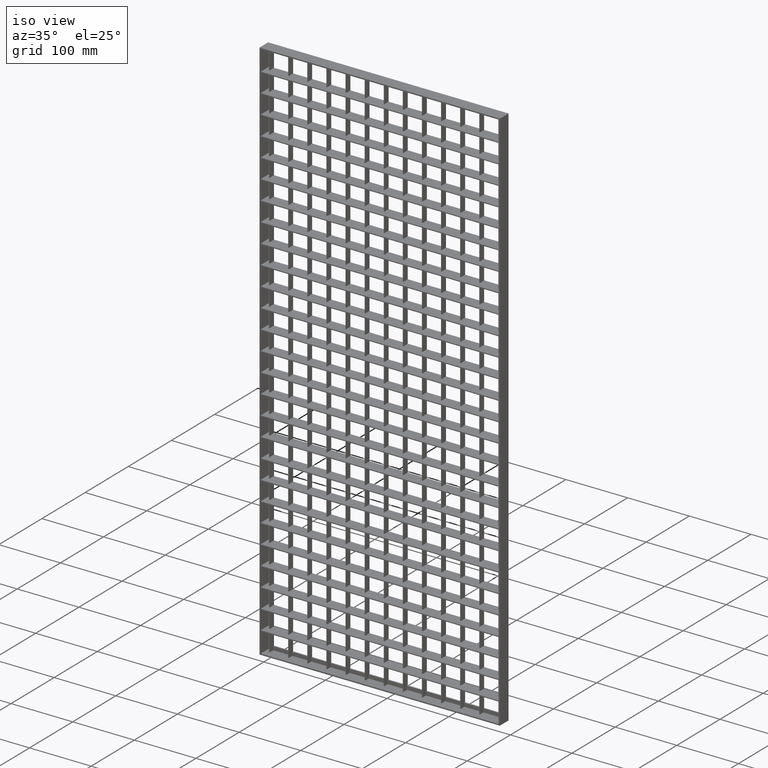
[diagram: clean part render]
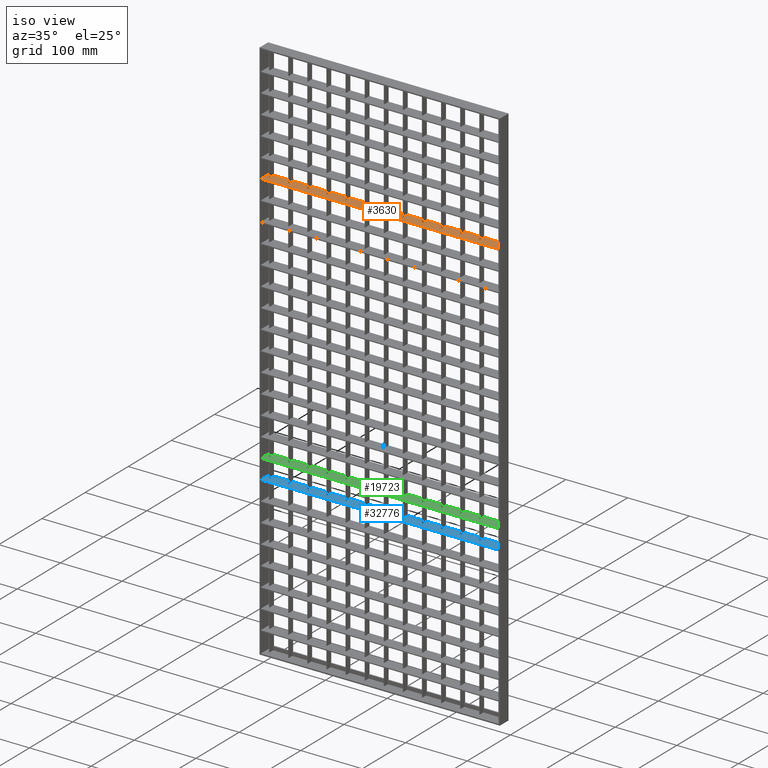
[diagram: same view with three faces highlighted in distinct colors, each labeled with its STEP entity id]
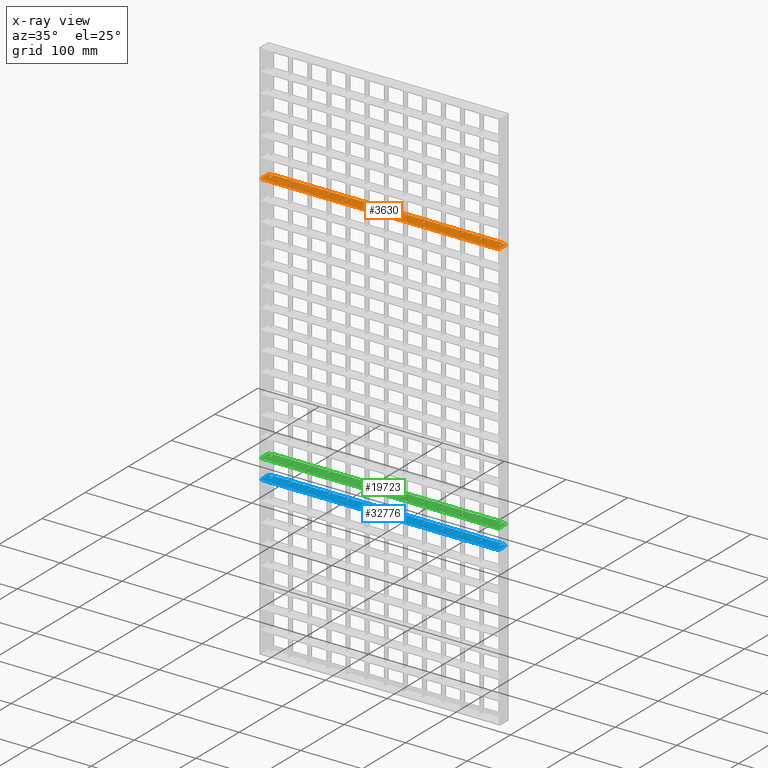
[diagram: x-ray of the same camera — body ghosted, the three highlighted faces saturated]
A machine part, iso view with three faces highlighted in distinct colors.
The next image is the same camera in x-ray (body ghosted, the three faces saturated) — at least one of them is partly hidden behind the body in this view.
Their STEP definitions:

[orange] entity #3630 — the highlighted planar face has unit normal (0, 0, 1).
#61 = ORIENTED_EDGE ( 'NONE', *, *, #44820, .T. ) ;
#150 = ORIENTED_EDGE ( 'NONE', *, *, #13722, .T. ) ;
#483 = VERTEX_POINT ( 'NONE', #38336 ) ;
#585 = CARTESIAN_POINT ( 'NONE',  ( 195.5000000000000600, 10.00000000000005300, -192.2500000000001400 ) ) ;
#863 = EDGE_CURVE ( 'NONE', #21381, #52668, #17147, .T. ) ;
#898 = ORIENTED_EDGE ( 'NONE', *, *, #33021, .F. ) ;
#1306 = EDGE_CURVE ( 'NONE', #5168, #33740, #14116, .T. ) ;
#1313 = CARTESIAN_POINT ( 'NONE',  ( 287.5000000000001100, -9.999999999999881000, -192.2500000000001400 ) ) ;
#1360 = EDGE_CURVE ( 'NONE', #14015, #25037, #33572, .T. ) ;
#1382 = EDGE_CURVE ( 'NONE', #22975, #24222, #14758, .T. ) ;
#1593 = LINE ( 'NONE', #25158, #46260 ) ;
#1608 = LINE ( 'NONE', #37558, #6260 ) ;
#1775 = CARTESIAN_POINT ( 'NONE',  ( 382.0000000000002300, 10.00000000000000400, -192.2500000000001400 ) ) ;
#1867 = ORIENTED_EDGE ( 'NONE', *, *, #34208, .F. ) ;
#2051 = LINE ( 'NONE', #37416, #54752 ) ;
#2238 = VERTEX_POINT ( 'NONE', #45778 ) ;
#2289 = CARTESIAN_POINT ( 'NONE',  ( 408.0561711201316900, 10.00000000000012100, -192.2500000000001400 ) ) ;
#2295 = ORIENTED_EDGE ( 'NONE', *, *, #40499, .T. ) ;
#2313 = CARTESIAN_POINT ( 'NONE',  ( 133.5000000000000000, -9.999999999999881000, -192.2500000000001400 ) ) ;
#2596 = VECTOR ( 'NONE', #53444, 1000.000000000000000 ) ;
#2722 = EDGE_CURVE ( 'NONE', #3088, #28177, #53402, .T. ) ;
#2839 = DIRECTION ( 'NONE',  ( -0.0000000000000000000, -1.000000000000000000, 0.0000000000000000000 ) ) ;
#2887 = VECTOR ( 'NONE', #52621, 1000.000000000000000 ) ;
#2982 = EDGE_CURVE ( 'NONE', #32814, #41437, #22632, .T. ) ;
#3073 = DIRECTION ( 'NONE',  ( -1.000000000000000000, 3.061616997868381200E-016, 0.0000000000000000000 ) ) ;
#3088 = VERTEX_POINT ( 'NONE', #21132 ) ;
#3104 = VERTEX_POINT ( 'NONE', #29173 ) ;
#3513 = DIRECTION ( 'NONE',  ( -0.0000000000000000000, 1.000000000000000000, 0.0000000000000000000 ) ) ;
#3527 = ORIENTED_EDGE ( 'NONE', *, *, #54027, .T. ) ;
#3540 = DIRECTION ( 'NONE',  ( -1.000000000000000000, -3.061616997868383100E-016, 0.0000000000000000000 ) ) ;
#3630 = ADVANCED_FACE ( 'NONE', ( #34644 ), #44379, .T. ) ;
#3893 = CARTESIAN_POINT ( 'NONE',  ( 225.5000000000001400, -9.999999999999881000, -192.2500000000001400 ) ) ;
#3936 = CARTESIAN_POINT ( 'NONE',  ( 101.4999999999999900, 3.288756224416848900E-015, -192.2500000000001400 ) ) ;
#3998 = EDGE_CURVE ( 'NONE', #50560, #14814, #8552, .T. ) ;
#4051 = VECTOR ( 'NONE', #40746, 1000.000000000000000 ) ;
#4193 = CARTESIAN_POINT ( 'NONE',  ( 408.0561711201316900, 1.058181320345852300E-013, -192.2500000000001400 ) ) ;
#4320 = VECTOR ( 'NONE', #43580, 1000.000000000000000 ) ;
#4396 = LINE ( 'NONE', #23170, #49175 ) ;
#4408 = VECTOR ( 'NONE', #43892, 1000.000000000000000 ) ;
#4560 = CARTESIAN_POINT ( 'NONE',  ( 194.5000000000000000, 4.006218688963889700E-015, -192.2500000000001400 ) ) ;
#4595 = CARTESIAN_POINT ( 'NONE',  ( 408.0561711201316900, 8.673617379884035500E-014, -192.2500000000001400 ) ) ;
#4659 = ORIENTED_EDGE ( 'NONE', *, *, #1306, .T. ) ;
#4822 = EDGE_LOOP ( 'NONE', ( #2295, #27605, #33427, #35723, #41591, #11537, #24408, #26407, #50194, #40820, #24240, #20034, #16644, #48398, #24352, #150, #12273, #35119, #3527, #32185, #45440, #9073, #13486, #8823, #26877, #14923, #44211, #16005, #4659, #8673, #51947, #7315, #27823, #41883, #33677, #27255, #40769, #898, #25419, #13377, #18519, #46485, #7204, #30045, #23944, #44781, #1867, #40818, #44635, #21170, #11506, #54767, #11487, #49882, #27303, #5840, #14092, #38158, #61, #32230 ) ) ;
#4889 = VERTEX_POINT ( 'NONE', #50417 ) ;
#5059 = DIRECTION ( 'NONE',  ( -1.000000000000000000, -3.061616997868383100E-016, 0.0000000000000000000 ) ) ;
#5168 = VERTEX_POINT ( 'NONE', #51419 ) ;
#5351 = CARTESIAN_POINT ( 'NONE',  ( 408.0561711201316900, 7.806255641895631900E-014, -192.2500000000001400 ) ) ;
#5489 = LINE ( 'NONE', #13001, #11443 ) ;
#5552 = EDGE_CURVE ( 'NONE', #24222, #45373, #19642, .T. ) ;
#5668 = LINE ( 'NONE', #28376, #25623 ) ;
#5718 = EDGE_CURVE ( 'NONE', #4889, #10374, #35713, .T. ) ;
#5840 = ORIENTED_EDGE ( 'NONE', *, *, #7506, .T. ) ;
#6083 = VECTOR ( 'NONE', #46408, 1000.000000000000000 ) ;
#6260 = VECTOR ( 'NONE', #33824, 1000.000000000000000 ) ;
#6469 = DIRECTION ( 'NONE',  ( 1.000000000000000000, 3.061616997868381200E-016, -0.0000000000000000000 ) ) ;
#6855 = DIRECTION ( 'NONE',  ( 0.0000000000000000000, -1.000000000000000000, 0.0000000000000000000 ) ) ;
#6981 = CARTESIAN_POINT ( 'NONE',  ( 8.500000000000007100, 2.571293759869832600E-015, -192.2500000000001400 ) ) ;
#7204 = ORIENTED_EDGE ( 'NONE', *, *, #5718, .F. ) ;
#7284 = VERTEX_POINT ( 'NONE', #44405 ) ;
#7315 = ORIENTED_EDGE ( 'NONE', *, *, #2722, .F. ) ;
#7317 = VECTOR ( 'NONE', #30308, 1000.000000000000000 ) ;
#7324 = VECTOR ( 'NONE', #44167, 1000.000000000000000 ) ;
#7491 = EDGE_CURVE ( 'NONE', #32814, #16883, #43433, .T. ) ;
#7506 = EDGE_CURVE ( 'NONE', #50200, #53461, #26057, .T. ) ;
#7748 = CARTESIAN_POINT ( 'NONE',  ( 388.0000000000001100, -10.00000000000000500, -192.2500000000001400 ) ) ;
#7799 = CARTESIAN_POINT ( 'NONE',  ( 318.5000000000000600, 2.741007806152566700E-015, -192.2500000000001400 ) ) ;
#7886 = VECTOR ( 'NONE', #9605, 1000.000000000000000 ) ;
#7945 = CARTESIAN_POINT ( 'NONE',  ( 164.5000000000000000, 1.734723475976807100E-015, -192.2500000000001400 ) ) ;
#8037 = EDGE_CURVE ( 'NONE', #49486, #11304, #48041, .T. ) ;
#8552 = LINE ( 'NONE', #53495, #39282 ) ;
#8673 = ORIENTED_EDGE ( 'NONE', *, *, #43203, .F. ) ;
#8717 = EDGE_CURVE ( 'NONE', #25988, #26623, #37984, .T. ) ;
#8734 = VECTOR ( 'NONE', #29049, 1000.000000000000000 ) ;
#8780 = LINE ( 'NONE', #48475, #52861 ) ;
#8823 = ORIENTED_EDGE ( 'NONE', *, *, #21421, .T. ) ;
#8869 = VERTEX_POINT ( 'NONE', #34161 ) ;
#9073 = ORIENTED_EDGE ( 'NONE', *, *, #3998, .T. ) ;
#9516 = VERTEX_POINT ( 'NONE', #52491 ) ;
#9605 = DIRECTION ( 'NONE',  ( 0.0000000000000000000, 1.000000000000000000, -0.0000000000000000000 ) ) ;
#9876 = EDGE_CURVE ( 'NONE', #43827, #19633, #32503, .T. ) ;
#10040 = VECTOR ( 'NONE', #52476, 1000.000000000000000 ) ;
#10144 = CARTESIAN_POINT ( 'NONE',  ( 381.5000000000000000, 2.434846106365728500E-015, -192.2500000000001400 ) ) ;
#10176 = LINE ( 'NONE', #45690, #11515 ) ;
#10374 = VERTEX_POINT ( 'NONE', #11328 ) ;
#10667 = DIRECTION ( 'NONE',  ( -1.000000000000000000, 3.061616997868381200E-016, 0.0000000000000000000 ) ) ;
#10884 = VECTOR ( 'NONE', #46147, 1000.000000000000000 ) ;
#11018 = VERTEX_POINT ( 'NONE', #31182 ) ;
#11265 = DIRECTION ( 'NONE',  ( 0.0000000000000000000, -1.000000000000000000, 0.0000000000000000000 ) ) ;
#11275 = VECTOR ( 'NONE', #28833, 1000.000000000000000 ) ;
#11304 = VERTEX_POINT ( 'NONE', #15445 ) ;
#11328 = CARTESIAN_POINT ( 'NONE',  ( 71.50000000000001400, 1.734723475976807100E-015, -192.2500000000001400 ) ) ;
#11335 = DIRECTION ( 'NONE',  ( -1.000000000000000000, 0.0000000000000000000, 0.0000000000000000000 ) ) ;
#11367 = LINE ( 'NONE', #34938, #10040 ) ;
#11390 = EDGE_CURVE ( 'NONE', #52072, #53461, #1593, .T. ) ;
#11443 = VECTOR ( 'NONE', #21997, 1000.000000000000000 ) ;
#11487 = ORIENTED_EDGE ( 'NONE', *, *, #1382, .T. ) ;
#11506 = ORIENTED_EDGE ( 'NONE', *, *, #37739, .F. ) ;
#11515 = VECTOR ( 'NONE', #17066, 1000.000000000000000 ) ;
#11537 = ORIENTED_EDGE ( 'NONE', *, *, #18401, .T. ) ;
#11630 = CARTESIAN_POINT ( 'NONE',  ( 8.500000000000007100, -9.999999999999881000, -192.2500000000001400 ) ) ;
#11985 = CARTESIAN_POINT ( 'NONE',  ( 101.5000000000000300, -9.999999999999881000, -192.2500000000001400 ) ) ;
#12252 = LINE ( 'NONE', #24141, #18224 ) ;
#12273 = ORIENTED_EDGE ( 'NONE', *, *, #14592, .T. ) ;
#12335 = DIRECTION ( 'NONE',  ( 0.0000000000000000000, -1.000000000000000000, 0.0000000000000000000 ) ) ;
#12512 = CARTESIAN_POINT ( 'NONE',  ( 256.5000000000000600, -9.999999999999881000, -192.2500000000001400 ) ) ;
#12693 = VECTOR ( 'NONE', #11265, 1000.000000000000000 ) ;
#12708 = DIRECTION ( 'NONE',  ( 1.000000000000000000, 3.061616997868381200E-016, -0.0000000000000000000 ) ) ;
#13001 = CARTESIAN_POINT ( 'NONE',  ( 257.5000000000000600, -9.999999999999881000, -192.2500000000001400 ) ) ;
#13115 = LINE ( 'NONE', #54424, #45914 ) ;
#13345 = LINE ( 'NONE', #24036, #20708 ) ;
#13377 = ORIENTED_EDGE ( 'NONE', *, *, #22087, .F. ) ;
#13386 = EDGE_CURVE ( 'NONE', #38570, #4889, #51446, .T. ) ;
#13427 = CARTESIAN_POINT ( 'NONE',  ( 380.5000000000000000, -9.999999999999881000, -192.2500000000001400 ) ) ;
#13486 = ORIENTED_EDGE ( 'NONE', *, *, #49054, .T. ) ;
#13575 = CARTESIAN_POINT ( 'NONE',  ( 256.5000000000001100, 10.00000000000007300, -192.2500000000001400 ) ) ;
#13713 = CARTESIAN_POINT ( 'NONE',  ( 40.49999999999997900, -9.999999999999881000, -192.2500000000001400 ) ) ;
#13722 = EDGE_CURVE ( 'NONE', #11304, #28639, #15969, .T. ) ;
#13759 = VERTEX_POINT ( 'NONE', #30937 ) ;
#14015 = VERTEX_POINT ( 'NONE', #7799 ) ;
#14092 = ORIENTED_EDGE ( 'NONE', *, *, #11390, .F. ) ;
#14100 = CARTESIAN_POINT ( 'NONE',  ( 408.0561711201316900, -9.999999999999881000, -192.2500000000001400 ) ) ;
#14114 = CARTESIAN_POINT ( 'NONE',  ( 318.5000000000001100, -9.999999999999881000, -192.2500000000001400 ) ) ;
#14116 = LINE ( 'NONE', #34713, #28888 ) ;
#14208 = EDGE_CURVE ( 'NONE', #47059, #42042, #46002, .T. ) ;
#14228 = EDGE_CURVE ( 'NONE', #28177, #31664, #35989, .T. ) ;
#14399 = DIRECTION ( 'NONE',  ( -1.000000000000000000, 0.0000000000000000000, 0.0000000000000000000 ) ) ;
#14592 = EDGE_CURVE ( 'NONE', #28639, #9516, #33950, .T. ) ;
#14758 = LINE ( 'NONE', #22941, #2887 ) ;
#14814 = VERTEX_POINT ( 'NONE', #38854 ) ;
#14834 = EDGE_CURVE ( 'NONE', #27147, #19214, #41244, .T. ) ;
#14923 = ORIENTED_EDGE ( 'NONE', *, *, #863, .F. ) ;
#14942 = CARTESIAN_POINT ( 'NONE',  ( 349.5000000000001100, -9.999999999999881000, -192.2500000000001400 ) ) ;
#15065 = VECTOR ( 'NONE', #33540, 1000.000000000000000 ) ;
#15445 = CARTESIAN_POINT ( 'NONE',  ( 287.5000000000000600, 2.741007806152566700E-015, -192.2500000000001400 ) ) ;
#15503 = CARTESIAN_POINT ( 'NONE',  ( 408.0561711201316900, 10.00000000000012100, -192.2500000000001400 ) ) ;
#15594 = CARTESIAN_POINT ( 'NONE',  ( 39.49999999999997900, -9.999999999999881000, -192.2500000000001400 ) ) ;
#15613 = CARTESIAN_POINT ( 'NONE',  ( 349.5000000000001700, 10.00000000000010300, -192.2500000000001400 ) ) ;
#15638 = DIRECTION ( 'NONE',  ( -1.000000000000000000, 3.061616997868381200E-016, 0.0000000000000000000 ) ) ;
#15888 = VECTOR ( 'NONE', #43724, 1000.000000000000000 ) ;
#15969 = LINE ( 'NONE', #1313, #46728 ) ;
#15975 = LINE ( 'NONE', #29861, #27994 ) ;
#16005 = ORIENTED_EDGE ( 'NONE', *, *, #40330, .F. ) ;
#16237 = CARTESIAN_POINT ( 'NONE',  ( 9.500000000000119000, 9.999999999999998200, -192.2500000000001400 ) ) ;
#16378 = CARTESIAN_POINT ( 'NONE',  ( 408.0561711201316900, -1.387778780781445700E-014, -192.2500000000001400 ) ) ;
#16585 = EDGE_CURVE ( 'NONE', #28942, #52072, #24941, .T. ) ;
#16644 = ORIENTED_EDGE ( 'NONE', *, *, #26569, .T. ) ;
#16686 = CARTESIAN_POINT ( 'NONE',  ( 132.5000000000000000, 2.371428061948003200E-015, -192.2500000000001400 ) ) ;
#16883 = VERTEX_POINT ( 'NONE', #51050 ) ;
#16935 = CARTESIAN_POINT ( 'NONE',  ( 133.5000000000000000, 1.734723475976807100E-015, -192.2500000000001400 ) ) ;
#16960 = DIRECTION ( 'NONE',  ( -1.000000000000000000, -3.061616997868383100E-016, 0.0000000000000000000 ) ) ;
#17066 = DIRECTION ( 'NONE',  ( -1.000000000000000000, -3.061616997868383100E-016, 0.0000000000000000000 ) ) ;
#17147 = LINE ( 'NONE', #36078, #2596 ) ;
#17153 = VERTEX_POINT ( 'NONE', #1775 ) ;
#17248 = CARTESIAN_POINT ( 'NONE',  ( 8.500000000000007100, 10.00000000000000400, -192.2500000000001400 ) ) ;
#17345 = LINE ( 'NONE', #33736, #6083 ) ;
#17491 = EDGE_CURVE ( 'NONE', #28785, #31448, #1608, .T. ) ;
#17598 = VECTOR ( 'NONE', #12708, 1000.000000000000000 ) ;
#17655 = DIRECTION ( 'NONE',  ( -1.000000000000000000, 3.061616997868381200E-016, 0.0000000000000000000 ) ) ;
#17815 = VERTEX_POINT ( 'NONE', #23695 ) ;
#18016 = CARTESIAN_POINT ( 'NONE',  ( 408.0561711201316900, -5.204170427930421300E-014, -192.2500000000001400 ) ) ;
#18224 = VECTOR ( 'NONE', #6469, 1000.000000000000000 ) ;
#18282 = VECTOR ( 'NONE', #22178, 1000.000000000000000 ) ;
#18387 = DIRECTION ( 'NONE',  ( -0.0000000000000000000, 1.000000000000000000, 0.0000000000000000000 ) ) ;
#18401 = EDGE_CURVE ( 'NONE', #42042, #43827, #8780, .T. ) ;
#18519 = ORIENTED_EDGE ( 'NONE', *, *, #19292, .T. ) ;
#18595 = CARTESIAN_POINT ( 'NONE',  ( 102.5000000000000300, 1.734723475976807100E-015, -192.2500000000001400 ) ) ;
#19155 = LINE ( 'NONE', #43008, #7886 ) ;
#19214 = VERTEX_POINT ( 'NONE', #45585 ) ;
#19292 = EDGE_CURVE ( 'NONE', #13759, #45479, #15975, .T. ) ;
#19373 = LINE ( 'NONE', #50804, #44108 ) ;
#19445 = VERTEX_POINT ( 'NONE', #39583 ) ;
#19633 = VERTEX_POINT ( 'NONE', #48455 ) ;
#19642 = LINE ( 'NONE', #32370, #23701 ) ;
#19983 = CARTESIAN_POINT ( 'NONE',  ( 380.5000000000000600, 10.00000000000011200, -192.2500000000001400 ) ) ;
#20034 = ORIENTED_EDGE ( 'NONE', *, *, #1360, .T. ) ;
#20199 = DIRECTION ( 'NONE',  ( 1.000000000000000000, 3.061616997868381200E-016, -0.0000000000000000000 ) ) ;
#20708 = VECTOR ( 'NONE', #11335, 1000.000000000000000 ) ;
#21010 = LINE ( 'NONE', #11630, #23737 ) ;
#21089 = VECTOR ( 'NONE', #3073, 1000.000000000000000 ) ;
#21132 = CARTESIAN_POINT ( 'NONE',  ( 163.5000000000000000, 10.00000000000000400, -192.2500000000001400 ) ) ;
#21170 = ORIENTED_EDGE ( 'NONE', *, *, #39144, .F. ) ;
#21381 = VERTEX_POINT ( 'NONE', #28683 ) ;
#21421 = EDGE_CURVE ( 'NONE', #19445, #483, #34491, .T. ) ;
#21562 = DIRECTION ( 'NONE',  ( 1.000000000000000000, 3.061616997868381200E-016, -0.0000000000000000000 ) ) ;
#21596 = VECTOR ( 'NONE', #23820, 1000.000000000000000 ) ;
#21991 = EDGE_CURVE ( 'NONE', #22975, #50671, #21010, .T. ) ;
#21997 = DIRECTION ( 'NONE',  ( 0.0000000000000000000, -1.000000000000000000, 0.0000000000000000000 ) ) ;
#22021 = CARTESIAN_POINT ( 'NONE',  ( 381.5000000000000000, 10.00000000000000400, -192.2500000000001400 ) ) ;
#22087 = EDGE_CURVE ( 'NONE', #13759, #45833, #43767, .T. ) ;
#22178 = DIRECTION ( 'NONE',  ( 0.0000000000000000000, -1.000000000000000000, 0.0000000000000000000 ) ) ;
#22321 = CARTESIAN_POINT ( 'NONE',  ( 163.5000000000000000, -9.999999999999881000, -192.2500000000001400 ) ) ;
#22632 = LINE ( 'NONE', #54653, #11275 ) ;
#22647 = VECTOR ( 'NONE', #26068, 1000.000000000000000 ) ;
#22669 = LINE ( 'NONE', #33928, #54815 ) ;
#22941 = CARTESIAN_POINT ( 'NONE',  ( 408.0561711201316900, 10.00000000000012100, -192.2500000000001400 ) ) ;
#22969 = CARTESIAN_POINT ( 'NONE',  ( 71.50000000000017100, 10.00000000000001800, -192.2500000000001400 ) ) ;
#22975 = VERTEX_POINT ( 'NONE', #17248 ) ;
#23170 = CARTESIAN_POINT ( 'NONE',  ( 408.0561711201316900, -5.204170427930421300E-015, -192.2500000000001400 ) ) ;
#23450 = VECTOR ( 'NONE', #21562, 1000.000000000000000 ) ;
#23659 = EDGE_CURVE ( 'NONE', #38426, #50560, #38641, .T. ) ;
#23695 = CARTESIAN_POINT ( 'NONE',  ( 257.5000000000000600, 2.434846106365728500E-015, -192.2500000000001400 ) ) ;
#23701 = VECTOR ( 'NONE', #41134, 1000.000000000000000 ) ;
#23731 = LINE ( 'NONE', #13427, #4408 ) ;
#23737 = VECTOR ( 'NONE', #40961, 1000.000000000000000 ) ;
#23820 = DIRECTION ( 'NONE',  ( 0.0000000000000000000, -1.000000000000000000, 0.0000000000000000000 ) ) ;
#23944 = ORIENTED_EDGE ( 'NONE', *, *, #40437, .T. ) ;
#24036 = CARTESIAN_POINT ( 'NONE',  ( 2.000000000000003600, 8.000000000000001800, -192.2500000000001400 ) ) ;
#24141 = CARTESIAN_POINT ( 'NONE',  ( 408.0561711201316900, 6.938893903907228400E-014, -192.2500000000001400 ) ) ;
#24222 = VERTEX_POINT ( 'NONE', #47506 ) ;
#24240 = ORIENTED_EDGE ( 'NONE', *, *, #35764, .T. ) ;
#24352 = ORIENTED_EDGE ( 'NONE', *, *, #8037, .T. ) ;
#24408 = ORIENTED_EDGE ( 'NONE', *, *, #9876, .T. ) ;
#24630 = LINE ( 'NONE', #46946, #45381 ) ;
#24881 = EDGE_CURVE ( 'NONE', #25410, #47059, #23731, .T. ) ;
#24911 = CARTESIAN_POINT ( 'NONE',  ( 71.50000000000001400, -9.999999999999881000, -192.2500000000001400 ) ) ;
#24941 = LINE ( 'NONE', #36157, #21596 ) ;
#25037 = VERTEX_POINT ( 'NONE', #52676 ) ;
#25073 = LINE ( 'NONE', #55222, #41122 ) ;
#25158 = CARTESIAN_POINT ( 'NONE',  ( 408.0561711201316900, -9.999999999999881000, -192.2500000000001400 ) ) ;
#25393 = DIRECTION ( 'NONE',  ( 0.0000000000000000000, -1.000000000000000000, 0.0000000000000000000 ) ) ;
#25410 = VERTEX_POINT ( 'NONE', #30002 ) ;
#25419 = ORIENTED_EDGE ( 'NONE', *, *, #28239, .F. ) ;
#25623 = VECTOR ( 'NONE', #15638, 1000.000000000000000 ) ;
#25912 = CARTESIAN_POINT ( 'NONE',  ( 164.5000000000000600, 10.00000000000004600, -192.2500000000001400 ) ) ;
#25988 = VERTEX_POINT ( 'NONE', #16935 ) ;
#25999 = LINE ( 'NONE', #18016, #47311 ) ;
#26057 = LINE ( 'NONE', #45337, #36099 ) ;
#26068 = DIRECTION ( 'NONE',  ( -0.0000000000000000000, 1.000000000000000000, 0.0000000000000000000 ) ) ;
#26139 = CARTESIAN_POINT ( 'NONE',  ( 319.5000000000001100, -9.999999999999881000, -192.2500000000001400 ) ) ;
#26407 = ORIENTED_EDGE ( 'NONE', *, *, #41295, .T. ) ;
#26569 = EDGE_CURVE ( 'NONE', #25037, #8869, #10176, .T. ) ;
#26623 = VERTEX_POINT ( 'NONE', #47138 ) ;
#26851 = DIRECTION ( 'NONE',  ( -0.0000000000000000000, 1.000000000000000000, 0.0000000000000000000 ) ) ;
#26877 = ORIENTED_EDGE ( 'NONE', *, *, #48432, .T. ) ;
#27018 = DIRECTION ( 'NONE',  ( 0.0000000000000000000, 0.0000000000000000000, 1.000000000000000000 ) ) ;
#27083 = VECTOR ( 'NONE', #3540, 1000.000000000000000 ) ;
#27147 = VERTEX_POINT ( 'NONE', #37912 ) ;
#27206 = VERTEX_POINT ( 'NONE', #43490 ) ;
#27255 = ORIENTED_EDGE ( 'NONE', *, *, #51061, .F. ) ;
#27303 = ORIENTED_EDGE ( 'NONE', *, *, #53048, .T. ) ;
#27418 = DIRECTION ( 'NONE',  ( 0.0000000000000000000, -1.000000000000000000, 0.0000000000000000000 ) ) ;
#27552 = CARTESIAN_POINT ( 'NONE',  ( 9.500000000000008900, -9.999999999999881000, -192.2500000000001400 ) ) ;
#27605 = ORIENTED_EDGE ( 'NONE', *, *, #17491, .T. ) ;
#27639 = LINE ( 'NONE', #39656, #35698 ) ;
#27823 = ORIENTED_EDGE ( 'NONE', *, *, #35674, .T. ) ;
#27994 = VECTOR ( 'NONE', #34379, 1000.000000000000000 ) ;
#28177 = VERTEX_POINT ( 'NONE', #54076 ) ;
#28239 = EDGE_CURVE ( 'NONE', #45833, #32603, #2051, .T. ) ;
#28259 = VERTEX_POINT ( 'NONE', #36686 ) ;
#28376 = CARTESIAN_POINT ( 'NONE',  ( 408.0561711201316900, -2.428612866367529900E-014, -192.2500000000001400 ) ) ;
#28565 = EDGE_CURVE ( 'NONE', #29098, #27147, #22669, .T. ) ;
#28639 = VERTEX_POINT ( 'NONE', #29669 ) ;
#28683 = CARTESIAN_POINT ( 'NONE',  ( 195.5000000000000000, 1.734723475976807100E-015, -192.2500000000001400 ) ) ;
#28785 = VERTEX_POINT ( 'NONE', #22021 ) ;
#28833 = DIRECTION ( 'NONE',  ( -1.000000000000000000, -3.061616997868383100E-016, 0.0000000000000000000 ) ) ;
#28888 = VECTOR ( 'NONE', #5059, 1000.000000000000000 ) ;
#28942 = VERTEX_POINT ( 'NONE', #48550 ) ;
#29049 = DIRECTION ( 'NONE',  ( 0.0000000000000000000, -1.000000000000000000, 0.0000000000000000000 ) ) ;
#29098 = VERTEX_POINT ( 'NONE', #15613 ) ;
#29173 = CARTESIAN_POINT ( 'NONE',  ( 382.0000000000001100, 8.000000000000001800, -192.2500000000001400 ) ) ;
#29564 = DIRECTION ( 'NONE',  ( -1.000000000000000000, -3.061616997868383100E-016, 0.0000000000000000000 ) ) ;
#29669 = CARTESIAN_POINT ( 'NONE',  ( 287.5000000000001100, 10.00000000000008300, -192.2500000000001400 ) ) ;
#29861 = CARTESIAN_POINT ( 'NONE',  ( 408.0561711201316900, 10.00000000000012100, -192.2500000000001400 ) ) ;
#30002 = CARTESIAN_POINT ( 'NONE',  ( 380.5000000000000000, 2.741007806152566700E-015, -192.2500000000001400 ) ) ;
#30045 = ORIENTED_EDGE ( 'NONE', *, *, #13386, .F. ) ;
#30156 = VECTOR ( 'NONE', #26851, 1000.000000000000000 ) ;
#30308 = DIRECTION ( 'NONE',  ( 1.000000000000000000, 3.061616997868381200E-016, -0.0000000000000000000 ) ) ;
#30937 = CARTESIAN_POINT ( 'NONE',  ( 101.5000000000000000, 10.00000000000000400, -192.2500000000001400 ) ) ;
#31136 = CARTESIAN_POINT ( 'NONE',  ( 132.5000000000000000, -9.999999999999881000, -192.2500000000001400 ) ) ;
#31182 = CARTESIAN_POINT ( 'NONE',  ( 9.500000000000008900, 1.734723475976807100E-015, -192.2500000000001400 ) ) ;
#31448 = VERTEX_POINT ( 'NONE', #10144 ) ;
#31664 = VERTEX_POINT ( 'NONE', #7945 ) ;
#31748 = DIRECTION ( 'NONE',  ( -0.0000000000000000000, 1.000000000000000000, 0.0000000000000000000 ) ) ;
#31860 = VERTEX_POINT ( 'NONE', #4560 ) ;
#32185 = ORIENTED_EDGE ( 'NONE', *, *, #37091, .T. ) ;
#32230 = ORIENTED_EDGE ( 'NONE', *, *, #49884, .T. ) ;
#32370 = CARTESIAN_POINT ( 'NONE',  ( 7.999999999999996400, 8.000000000000001800, -192.2500000000001400 ) ) ;
#32503 = LINE ( 'NONE', #16378, #21089 ) ;
#32508 = EDGE_CURVE ( 'NONE', #9516, #17815, #5489, .T. ) ;
#32603 = VERTEX_POINT ( 'NONE', #18595 ) ;
#32677 = LINE ( 'NONE', #27552, #7324 ) ;
#32814 = VERTEX_POINT ( 'NONE', #53002 ) ;
#33021 = EDGE_CURVE ( 'NONE', #32603, #28259, #17345, .T. ) ;
#33023 = VERTEX_POINT ( 'NONE', #16686 ) ;
#33427 = ORIENTED_EDGE ( 'NONE', *, *, #50503, .T. ) ;
#33540 = DIRECTION ( 'NONE',  ( -0.0000000000000000000, 1.000000000000000000, 0.0000000000000000000 ) ) ;
#33572 = LINE ( 'NONE', #14114, #30156 ) ;
#33677 = ORIENTED_EDGE ( 'NONE', *, *, #44722, .F. ) ;
#33736 = CARTESIAN_POINT ( 'NONE',  ( 102.5000000000000300, -9.999999999999881000, -192.2500000000001400 ) ) ;
#33740 = VERTEX_POINT ( 'NONE', #25912 ) ;
#33824 = DIRECTION ( 'NONE',  ( 0.0000000000000000000, -1.000000000000000000, 0.0000000000000000000 ) ) ;
#33928 = CARTESIAN_POINT ( 'NONE',  ( 408.0561711201316900, 10.00000000000012100, -192.2500000000001400 ) ) ;
#33950 = LINE ( 'NONE', #15503, #47263 ) ;
#34161 = CARTESIAN_POINT ( 'NONE',  ( 288.5000000000000600, 10.00000000000000400, -192.2500000000001400 ) ) ;
#34168 = LINE ( 'NONE', #55426, #23450 ) ;
#34208 = EDGE_CURVE ( 'NONE', #16883, #46360, #24630, .T. ) ;
#34215 = CARTESIAN_POINT ( 'NONE',  ( 40.49999999999997900, 1.734723475976807100E-015, -192.2500000000001400 ) ) ;
#34379 = DIRECTION ( 'NONE',  ( -1.000000000000000000, -3.061616997868383100E-016, 0.0000000000000000000 ) ) ;
#34491 = LINE ( 'NONE', #3893, #15065 ) ;
#34587 = CARTESIAN_POINT ( 'NONE',  ( 408.0561711201316900, 10.00000000000012100, -192.2500000000001400 ) ) ;
#34644 = FACE_OUTER_BOUND ( 'NONE', #4822, .T. ) ;
#34713 = CARTESIAN_POINT ( 'NONE',  ( 408.0561711201316900, 10.00000000000012100, -192.2500000000001400 ) ) ;
#34938 = CARTESIAN_POINT ( 'NONE',  ( 408.0561711201316900, -4.336808689942017700E-014, -192.2500000000001400 ) ) ;
#35029 = LINE ( 'NONE', #48825, #54475 ) ;
#35114 = EDGE_CURVE ( 'NONE', #2238, #28259, #41146, .T. ) ;
#35119 = ORIENTED_EDGE ( 'NONE', *, *, #32508, .T. ) ;
#35191 = DIRECTION ( 'NONE',  ( -1.000000000000000000, -3.061616997868383100E-016, 0.0000000000000000000 ) ) ;
#35657 = CARTESIAN_POINT ( 'NONE',  ( 194.5000000000000000, -9.999999999999881000, -192.2500000000001400 ) ) ;
#35674 = EDGE_CURVE ( 'NONE', #3088, #26623, #35029, .T. ) ;
#35698 = VECTOR ( 'NONE', #14399, 1000.000000000000000 ) ;
#35713 = LINE ( 'NONE', #4193, #17598 ) ;
#35723 = ORIENTED_EDGE ( 'NONE', *, *, #24881, .T. ) ;
#35764 = EDGE_CURVE ( 'NONE', #19214, #14015, #5668, .T. ) ;
#35989 = LINE ( 'NONE', #5351, #7317 ) ;
#36078 = CARTESIAN_POINT ( 'NONE',  ( 195.5000000000000000, -9.999999999999881000, -192.2500000000001400 ) ) ;
#36099 = VECTOR ( 'NONE', #2839, 1000.000000000000000 ) ;
#36157 = CARTESIAN_POINT ( 'NONE',  ( 388.0000000000001100, -9.999999999999881000, -192.2500000000001400 ) ) ;
#36305 = CARTESIAN_POINT ( 'NONE',  ( 2.000000000000112800, -10.00000000000000500, -192.2500000000001400 ) ) ;
#36686 = CARTESIAN_POINT ( 'NONE',  ( 102.5000000000001400, 10.00000000000002700, -192.2500000000001400 ) ) ;
#37091 = EDGE_CURVE ( 'NONE', #27206, #38426, #40304, .T. ) ;
#37328 = VECTOR ( 'NONE', #29564, 1000.000000000000000 ) ;
#37387 = DIRECTION ( 'NONE',  ( -0.0000000000000000000, 1.000000000000000000, 0.0000000000000000000 ) ) ;
#37416 = CARTESIAN_POINT ( 'NONE',  ( 408.0561711201316900, 9.714451465470119700E-014, -192.2500000000001400 ) ) ;
#37438 = VECTOR ( 'NONE', #53581, 1000.000000000000000 ) ;
#37558 = CARTESIAN_POINT ( 'NONE',  ( 381.5000000000000000, -9.999999999999881000, -192.2500000000001400 ) ) ;
#37739 = EDGE_CURVE ( 'NONE', #50671, #11018, #34168, .T. ) ;
#37829 = DIRECTION ( 'NONE',  ( 0.0000000000000000000, -1.000000000000000000, 0.0000000000000000000 ) ) ;
#37912 = CARTESIAN_POINT ( 'NONE',  ( 319.5000000000000600, 10.00000000000000400, -192.2500000000001400 ) ) ;
#37984 = LINE ( 'NONE', #2313, #46015 ) ;
#38007 = CARTESIAN_POINT ( 'NONE',  ( 408.0561711201316900, 10.00000000000012100, -192.2500000000001400 ) ) ;
#38158 = ORIENTED_EDGE ( 'NONE', *, *, #16585, .F. ) ;
#38328 = CARTESIAN_POINT ( 'NONE',  ( 2.000000000000003600, 8.000000000000001800, -192.2500000000001400 ) ) ;
#38336 = CARTESIAN_POINT ( 'NONE',  ( 225.5000000000002000, 10.00000000000006400, -192.2500000000001400 ) ) ;
#38379 = DIRECTION ( 'NONE',  ( 1.000000000000000000, 3.061616997868381200E-016, -0.0000000000000000000 ) ) ;
#38425 = DIRECTION ( 'NONE',  ( -1.000000000000000000, -3.061616997868383100E-016, 0.0000000000000000000 ) ) ;
#38426 = VERTEX_POINT ( 'NONE', #13575 ) ;
#38570 = VERTEX_POINT ( 'NONE', #44402 ) ;
#38641 = LINE ( 'NONE', #34587, #15888 ) ;
#38854 = CARTESIAN_POINT ( 'NONE',  ( 226.5000000000001400, 2.434846106365728500E-015, -192.2500000000001400 ) ) ;
#38870 = VECTOR ( 'NONE', #3513, 1000.000000000000000 ) ;
#38970 = EDGE_CURVE ( 'NONE', #46360, #7284, #55414, .T. ) ;
#39144 = EDGE_CURVE ( 'NONE', #11018, #41437, #32677, .T. ) ;
#39282 = VECTOR ( 'NONE', #6855, 1000.000000000000000 ) ;
#39583 = CARTESIAN_POINT ( 'NONE',  ( 225.5000000000001400, 2.741007806152566700E-015, -192.2500000000001400 ) ) ;
#39656 = CARTESIAN_POINT ( 'NONE',  ( 195.0000000000000300, 8.000000000000001800, -192.2500000000001400 ) ) ;
#39774 = CARTESIAN_POINT ( 'NONE',  ( 7.999999999999996400, 8.000000000000001800, -192.2500000000001400 ) ) ;
#39871 = DIRECTION ( 'NONE',  ( 0.0000000000000000000, -1.000000000000000000, 0.0000000000000000000 ) ) ;
#40220 = CARTESIAN_POINT ( 'NONE',  ( 408.0561711201316900, -3.295974604355933500E-014, -192.2500000000001400 ) ) ;
#40304 = LINE ( 'NONE', #12512, #10884 ) ;
#40330 = EDGE_CURVE ( 'NONE', #5168, #31860, #51841, .T. ) ;
#40437 = EDGE_CURVE ( 'NONE', #38570, #7284, #48809, .T. ) ;
#40496 = VECTOR ( 'NONE', #27418, 1000.000000000000000 ) ;
#40499 = EDGE_CURVE ( 'NONE', #17153, #28785, #50149, .T. ) ;
#40686 = CARTESIAN_POINT ( 'NONE',  ( 408.0561711201316900, 10.00000000000012100, -192.2500000000001400 ) ) ;
#40746 = DIRECTION ( 'NONE',  ( -0.0000000000000000000, 1.000000000000000000, 0.0000000000000000000 ) ) ;
#40769 = ORIENTED_EDGE ( 'NONE', *, *, #35114, .T. ) ;
#40818 = ORIENTED_EDGE ( 'NONE', *, *, #7491, .F. ) ;
#40820 = ORIENTED_EDGE ( 'NONE', *, *, #14834, .T. ) ;
#40961 = DIRECTION ( 'NONE',  ( 0.0000000000000000000, -1.000000000000000000, 0.0000000000000000000 ) ) ;
#41122 = VECTOR ( 'NONE', #37829, 1000.000000000000000 ) ;
#41134 = DIRECTION ( 'NONE',  ( -0.0000000000000000000, -1.000000000000000000, 0.0000000000000000000 ) ) ;
#41146 = LINE ( 'NONE', #41398, #27083 ) ;
#41244 = LINE ( 'NONE', #26139, #45252 ) ;
#41295 = EDGE_CURVE ( 'NONE', #19633, #29098, #53475, .T. ) ;
#41398 = CARTESIAN_POINT ( 'NONE',  ( 408.0561711201316900, 10.00000000000012100, -192.2500000000001400 ) ) ;
#41437 = VERTEX_POINT ( 'NONE', #16237 ) ;
#41572 = CARTESIAN_POINT ( 'NONE',  ( 288.5000000000000600, 2.434846106365728500E-015, -192.2500000000001400 ) ) ;
#41591 = ORIENTED_EDGE ( 'NONE', *, *, #14208, .T. ) ;
#41883 = ORIENTED_EDGE ( 'NONE', *, *, #8717, .F. ) ;
#42042 = VERTEX_POINT ( 'NONE', #47166 ) ;
#43008 = CARTESIAN_POINT ( 'NONE',  ( 382.0000000000001100, 8.000000000000001800, -192.2500000000001400 ) ) ;
#43203 = EDGE_CURVE ( 'NONE', #31664, #33740, #13115, .T. ) ;
#43433 = LINE ( 'NONE', #15594, #8734 ) ;
#43490 = CARTESIAN_POINT ( 'NONE',  ( 256.5000000000000600, 2.741007806152566700E-015, -192.2500000000001400 ) ) ;
#43580 = DIRECTION ( 'NONE',  ( 1.000000000000000000, 3.061616997868381200E-016, -0.0000000000000000000 ) ) ;
#43724 = DIRECTION ( 'NONE',  ( -1.000000000000000000, -3.061616997868383100E-016, 0.0000000000000000000 ) ) ;
#43767 = LINE ( 'NONE', #11985, #48442 ) ;
#43827 = VERTEX_POINT ( 'NONE', #50052 ) ;
#43892 = DIRECTION ( 'NONE',  ( -0.0000000000000000000, 1.000000000000000000, 0.0000000000000000000 ) ) ;
#44108 = VECTOR ( 'NONE', #16960, 1000.000000000000000 ) ;
#44167 = DIRECTION ( 'NONE',  ( -0.0000000000000000000, 1.000000000000000000, 0.0000000000000000000 ) ) ;
#44197 = DIRECTION ( 'NONE',  ( 1.000000000000000000, 0.0000000000000000000, -0.0000000000000000000 ) ) ;
#44211 = ORIENTED_EDGE ( 'NONE', *, *, #44960, .F. ) ;
#44379 = PLANE ( 'NONE',  #51128 ) ;
#44402 = CARTESIAN_POINT ( 'NONE',  ( 70.50000000000000000, 10.00000000000000400, -192.2500000000001400 ) ) ;
#44405 = CARTESIAN_POINT ( 'NONE',  ( 40.50000000000014900, 10.00000000000000700, -192.2500000000001400 ) ) ;
#44579 = DIRECTION ( 'NONE',  ( -1.000000000000000000, -3.061616997868383100E-016, 0.0000000000000000000 ) ) ;
#44635 = ORIENTED_EDGE ( 'NONE', *, *, #2982, .T. ) ;
#44722 = EDGE_CURVE ( 'NONE', #33023, #25988, #54434, .T. ) ;
#44781 = ORIENTED_EDGE ( 'NONE', *, *, #38970, .F. ) ;
#44820 = EDGE_CURVE ( 'NONE', #28942, #3104, #27639, .T. ) ;
#44960 = EDGE_CURVE ( 'NONE', #31860, #21381, #12252, .T. ) ;
#45252 = VECTOR ( 'NONE', #25393, 1000.000000000000000 ) ;
#45259 = VECTOR ( 'NONE', #44579, 1000.000000000000000 ) ;
#45337 = CARTESIAN_POINT ( 'NONE',  ( 2.000000000000003600, -10.00000000000000000, -192.2500000000001400 ) ) ;
#45373 = VERTEX_POINT ( 'NONE', #39774 ) ;
#45381 = VECTOR ( 'NONE', #38379, 1000.000000000000000 ) ;
#45440 = ORIENTED_EDGE ( 'NONE', *, *, #23659, .T. ) ;
#45479 = VERTEX_POINT ( 'NONE', #22969 ) ;
#45585 = CARTESIAN_POINT ( 'NONE',  ( 319.5000000000000600, 2.434846106365728500E-015, -192.2500000000001400 ) ) ;
#45619 = CARTESIAN_POINT ( 'NONE',  ( 70.50000000000000000, -9.999999999999881000, -192.2500000000001400 ) ) ;
#45690 = CARTESIAN_POINT ( 'NONE',  ( 408.0561711201316900, 10.00000000000012100, -192.2500000000001400 ) ) ;
#45778 = CARTESIAN_POINT ( 'NONE',  ( 132.5000000000000000, 10.00000000000000400, -192.2500000000001400 ) ) ;
#45833 = VERTEX_POINT ( 'NONE', #3936 ) ;
#45914 = VECTOR ( 'NONE', #37387, 1000.000000000000000 ) ;
#46002 = LINE ( 'NONE', #38007, #37328 ) ;
#46015 = VECTOR ( 'NONE', #31748, 1000.000000000000000 ) ;
#46147 = DIRECTION ( 'NONE',  ( -0.0000000000000000000, 1.000000000000000000, 0.0000000000000000000 ) ) ;
#46260 = VECTOR ( 'NONE', #38425, 1000.000000000000000 ) ;
#46360 = VERTEX_POINT ( 'NONE', #34215 ) ;
#46408 = DIRECTION ( 'NONE',  ( -0.0000000000000000000, 1.000000000000000000, 0.0000000000000000000 ) ) ;
#46485 = ORIENTED_EDGE ( 'NONE', *, *, #47787, .F. ) ;
#46680 = VECTOR ( 'NONE', #53488, 1000.000000000000000 ) ;
#46728 = VECTOR ( 'NONE', #18387, 1000.000000000000000 ) ;
#46946 = CARTESIAN_POINT ( 'NONE',  ( 408.0561711201316900, 1.162264728904460800E-013, -192.2500000000001400 ) ) ;
#47059 = VERTEX_POINT ( 'NONE', #19983 ) ;
#47138 = CARTESIAN_POINT ( 'NONE',  ( 133.5000000000001100, 10.00000000000003700, -192.2500000000001400 ) ) ;
#47166 = CARTESIAN_POINT ( 'NONE',  ( 350.5000000000001100, 10.00000000000000400, -192.2500000000001400 ) ) ;
#47263 = VECTOR ( 'NONE', #49908, 1000.000000000000000 ) ;
#47311 = VECTOR ( 'NONE', #17655, 1000.000000000000000 ) ;
#47355 = VECTOR ( 'NONE', #51642, 1000.000000000000000 ) ;
#47506 = CARTESIAN_POINT ( 'NONE',  ( 7.999999999999996400, 10.00000000000000200, -192.2500000000001400 ) ) ;
#47741 = LINE ( 'NONE', #31136, #18282 ) ;
#47787 = EDGE_CURVE ( 'NONE', #10374, #45479, #48906, .T. ) ;
#48041 = LINE ( 'NONE', #40220, #46680 ) ;
#48398 = ORIENTED_EDGE ( 'NONE', *, *, #51507, .T. ) ;
#48432 = EDGE_CURVE ( 'NONE', #483, #52668, #19373, .T. ) ;
#48442 = VECTOR ( 'NONE', #12335, 1000.000000000000000 ) ;
#48455 = CARTESIAN_POINT ( 'NONE',  ( 349.5000000000001100, 2.741007806152566700E-015, -192.2500000000001400 ) ) ;
#48475 = CARTESIAN_POINT ( 'NONE',  ( 350.5000000000001100, -9.999999999999881000, -192.2500000000001400 ) ) ;
#48550 = CARTESIAN_POINT ( 'NONE',  ( 388.0000000000001700, 8.000000000000001800, -192.2500000000001400 ) ) ;
#48809 = LINE ( 'NONE', #40686, #37438 ) ;
#48825 = CARTESIAN_POINT ( 'NONE',  ( 408.0561711201316900, 10.00000000000012100, -192.2500000000001400 ) ) ;
#48906 = LINE ( 'NONE', #24911, #38870 ) ;
#48956 = CARTESIAN_POINT ( 'NONE',  ( 226.5000000000001400, 10.00000000000000400, -192.2500000000001400 ) ) ;
#49054 = EDGE_CURVE ( 'NONE', #14814, #19445, #25999, .T. ) ;
#49175 = VECTOR ( 'NONE', #10667, 1000.000000000000000 ) ;
#49486 = VERTEX_POINT ( 'NONE', #41572 ) ;
#49544 = DIRECTION ( 'NONE',  ( -1.000000000000000000, -3.061616997868383100E-016, 0.0000000000000000000 ) ) ;
#49882 = ORIENTED_EDGE ( 'NONE', *, *, #5552, .T. ) ;
#49884 = EDGE_CURVE ( 'NONE', #3104, #17153, #19155, .T. ) ;
#49908 = DIRECTION ( 'NONE',  ( -1.000000000000000000, -3.061616997868383100E-016, 0.0000000000000000000 ) ) ;
#50052 = CARTESIAN_POINT ( 'NONE',  ( 350.5000000000001100, 2.434846106365728500E-015, -192.2500000000001400 ) ) ;
#50149 = LINE ( 'NONE', #2289, #45259 ) ;
#50194 = ORIENTED_EDGE ( 'NONE', *, *, #28565, .T. ) ;
#50200 = VERTEX_POINT ( 'NONE', #38328 ) ;
#50417 = CARTESIAN_POINT ( 'NONE',  ( 70.49999999999995700, 2.471360910908899300E-015, -192.2500000000001400 ) ) ;
#50503 = EDGE_CURVE ( 'NONE', #31448, #25410, #4396, .T. ) ;
#50560 = VERTEX_POINT ( 'NONE', #48956 ) ;
#50671 = VERTEX_POINT ( 'NONE', #6981 ) ;
#50804 = CARTESIAN_POINT ( 'NONE',  ( 408.0561711201316900, 10.00000000000012100, -192.2500000000001400 ) ) ;
#51050 = CARTESIAN_POINT ( 'NONE',  ( 39.49999999999997900, 3.388689073377756900E-015, -192.2500000000001400 ) ) ;
#51061 = EDGE_CURVE ( 'NONE', #2238, #33023, #47741, .T. ) ;
#51128 = AXIS2_PLACEMENT_3D ( 'NONE', #14100, #27018, #44197 ) ;
#51419 = CARTESIAN_POINT ( 'NONE',  ( 194.5000000000000000, 10.00000000000000400, -192.2500000000001400 ) ) ;
#51446 = LINE ( 'NONE', #45619, #12693 ) ;
#51507 = EDGE_CURVE ( 'NONE', #8869, #49486, #25073, .T. ) ;
#51642 = DIRECTION ( 'NONE',  ( 0.0000000000000000000, -1.000000000000000000, 0.0000000000000000000 ) ) ;
#51841 = LINE ( 'NONE', #35657, #40496 ) ;
#51947 = ORIENTED_EDGE ( 'NONE', *, *, #14228, .F. ) ;
#52072 = VERTEX_POINT ( 'NONE', #7748 ) ;
#52476 = DIRECTION ( 'NONE',  ( -1.000000000000000000, 3.061616997868381200E-016, 0.0000000000000000000 ) ) ;
#52491 = CARTESIAN_POINT ( 'NONE',  ( 257.5000000000000600, 10.00000000000000400, -192.2500000000001400 ) ) ;
#52621 = DIRECTION ( 'NONE',  ( -1.000000000000000000, -3.061616997868383100E-016, 0.0000000000000000000 ) ) ;
#52668 = VERTEX_POINT ( 'NONE', #585 ) ;
#52676 = CARTESIAN_POINT ( 'NONE',  ( 318.5000000000001100, 10.00000000000009200, -192.2500000000001400 ) ) ;
#52861 = VECTOR ( 'NONE', #39871, 1000.000000000000000 ) ;
#53002 = CARTESIAN_POINT ( 'NONE',  ( 39.50000000000000700, 10.00000000000000400, -192.2500000000001400 ) ) ;
#53048 = EDGE_CURVE ( 'NONE', #45373, #50200, #13345, .T. ) ;
#53402 = LINE ( 'NONE', #22321, #47355 ) ;
#53444 = DIRECTION ( 'NONE',  ( -0.0000000000000000000, 1.000000000000000000, 0.0000000000000000000 ) ) ;
#53461 = VERTEX_POINT ( 'NONE', #36305 ) ;
#53475 = LINE ( 'NONE', #14942, #4051 ) ;
#53488 = DIRECTION ( 'NONE',  ( -1.000000000000000000, 3.061616997868381200E-016, 0.0000000000000000000 ) ) ;
#53495 = CARTESIAN_POINT ( 'NONE',  ( 226.5000000000001400, -9.999999999999881000, -192.2500000000001400 ) ) ;
#53581 = DIRECTION ( 'NONE',  ( -1.000000000000000000, -3.061616997868383100E-016, 0.0000000000000000000 ) ) ;
#54027 = EDGE_CURVE ( 'NONE', #17815, #27206, #11367, .T. ) ;
#54076 = CARTESIAN_POINT ( 'NONE',  ( 163.5000000000000000, 3.188823375455952700E-015, -192.2500000000001400 ) ) ;
#54424 = CARTESIAN_POINT ( 'NONE',  ( 164.5000000000000000, -9.999999999999881000, -192.2500000000001400 ) ) ;
#54434 = LINE ( 'NONE', #4595, #4320 ) ;
#54475 = VECTOR ( 'NONE', #35191, 1000.000000000000000 ) ;
#54653 = CARTESIAN_POINT ( 'NONE',  ( 408.0561711201316900, 10.00000000000012100, -192.2500000000001400 ) ) ;
#54752 = VECTOR ( 'NONE', #20199, 1000.000000000000000 ) ;
#54767 = ORIENTED_EDGE ( 'NONE', *, *, #21991, .F. ) ;
#54815 = VECTOR ( 'NONE', #49544, 1000.000000000000000 ) ;
#55222 = CARTESIAN_POINT ( 'NONE',  ( 288.5000000000001100, -9.999999999999881000, -192.2500000000001400 ) ) ;
#55414 = LINE ( 'NONE', #13713, #22647 ) ;
#55426 = CARTESIAN_POINT ( 'NONE',  ( 408.0561711201316900, 1.249000902703301100E-013, -192.2500000000001400 ) ) ;

[blue] entity #32776 — the highlighted planar face has unit normal (0, 0, -1).
#260 = ORIENTED_EDGE ( 'NONE', *, *, #6062, .T. ) ;
#313 = CARTESIAN_POINT ( 'NONE',  ( 318.5000000000000600, -9.999999999999881000, -633.2499999999998900 ) ) ;
#391 = CARTESIAN_POINT ( 'NONE',  ( 288.5000000000001100, 3.643774526586236400E-015, -633.2499999999998900 ) ) ;
#545 = VECTOR ( 'NONE', #39079, 1000.000000000000000 ) ;
#625 = EDGE_CURVE ( 'NONE', #8093, #28146, #54047, .T. ) ;
#782 = EDGE_CURVE ( 'NONE', #39931, #2759, #1233, .T. ) ;
#886 = EDGE_CURVE ( 'NONE', #48598, #43542, #19827, .T. ) ;
#957 = VERTEX_POINT ( 'NONE', #11043 ) ;
#982 = ORIENTED_EDGE ( 'NONE', *, *, #5846, .F. ) ;
#1075 = VECTOR ( 'NONE', #47176, 1000.000000000000000 ) ;
#1199 = CARTESIAN_POINT ( 'NONE',  ( 408.0561711201316400, 9.714451465470119700E-014, -633.2499999999998900 ) ) ;
#1233 = LINE ( 'NONE', #6612, #33929 ) ;
#1308 = VERTEX_POINT ( 'NONE', #26292 ) ;
#1340 = CARTESIAN_POINT ( 'NONE',  ( 71.50000000000001400, -9.999999999999881000, -633.2499999999998900 ) ) ;
#1377 = LINE ( 'NONE', #18043, #22706 ) ;
#1473 = ORIENTED_EDGE ( 'NONE', *, *, #38505, .T. ) ;
#1489 = VECTOR ( 'NONE', #18174, 1000.000000000000000 ) ;
#1570 = CARTESIAN_POINT ( 'NONE',  ( 194.5000000000000000, 4.006218688963914100E-015, -633.2499999999998900 ) ) ;
#1572 = EDGE_CURVE ( 'NONE', #14045, #51106, #37525, .T. ) ;
#1583 = CARTESIAN_POINT ( 'NONE',  ( 70.50000000000000000, 10.00000000000000400, -633.2499999999998900 ) ) ;
#1684 = DIRECTION ( 'NONE',  ( -1.000000000000000000, -3.061616997868381200E-016, 0.0000000000000000000 ) ) ;
#1709 = EDGE_CURVE ( 'NONE', #43542, #957, #12727, .T. ) ;
#1762 = CARTESIAN_POINT ( 'NONE',  ( 408.0561711201316400, -1.387778780781445700E-014, -633.2499999999998900 ) ) ;
#1839 = VECTOR ( 'NONE', #35139, 1000.000000000000000 ) ;
#2080 = CARTESIAN_POINT ( 'NONE',  ( 381.5000000000000000, -9.999999999999881000, -633.2499999999998900 ) ) ;
#2084 = LINE ( 'NONE', #4039, #7420 ) ;
#2365 = LINE ( 'NONE', #27091, #21603 ) ;
#2538 = CARTESIAN_POINT ( 'NONE',  ( 163.5000000000000000, 3.188823375455965000E-015, -633.2499999999998900 ) ) ;
#2611 = ORIENTED_EDGE ( 'NONE', *, *, #886, .F. ) ;
#2651 = VECTOR ( 'NONE', #36694, 1000.000000000000000 ) ;
#2737 = LINE ( 'NONE', #18662, #32726 ) ;
#2759 = VERTEX_POINT ( 'NONE', #42858 ) ;
#2890 = CARTESIAN_POINT ( 'NONE',  ( 256.5000000000001100, 10.00000000000007300, -633.2499999999998900 ) ) ;
#3053 = VECTOR ( 'NONE', #12165, 1000.000000000000000 ) ;
#3440 = VERTEX_POINT ( 'NONE', #23016 ) ;
#3550 = CARTESIAN_POINT ( 'NONE',  ( 350.5000000000001100, -9.999999999999881000, -633.2499999999998900 ) ) ;
#3566 = VERTEX_POINT ( 'NONE', #34503 ) ;
#3728 = VECTOR ( 'NONE', #52070, 1000.000000000000000 ) ;
#4039 = CARTESIAN_POINT ( 'NONE',  ( 8.500000000000007100, -9.999999999999881000, -633.2499999999998900 ) ) ;
#4064 = DIRECTION ( 'NONE',  ( 0.0000000000000000000, -1.000000000000000000, 0.0000000000000000000 ) ) ;
#4222 = EDGE_CURVE ( 'NONE', #17235, #48635, #21130, .T. ) ;
#4225 = VERTEX_POINT ( 'NONE', #12704 ) ;
#4365 = CARTESIAN_POINT ( 'NONE',  ( 132.5000000000000000, -9.999999999999881000, -633.2499999999998900 ) ) ;
#4386 = DIRECTION ( 'NONE',  ( 0.0000000000000000000, 1.000000000000000000, 0.0000000000000000000 ) ) ;
#4842 = EDGE_CURVE ( 'NONE', #11579, #42670, #9080, .T. ) ;
#5328 = LINE ( 'NONE', #9430, #11289 ) ;
#5846 = EDGE_CURVE ( 'NONE', #11753, #42318, #39032, .T. ) ;
#5855 = ORIENTED_EDGE ( 'NONE', *, *, #44042, .T. ) ;
#5941 = ORIENTED_EDGE ( 'NONE', *, *, #34240, .F. ) ;
#6062 = EDGE_CURVE ( 'NONE', #25920, #33534, #46977, .T. ) ;
#6316 = LINE ( 'NONE', #17096, #41043 ) ;
#6554 = VECTOR ( 'NONE', #21286, 1000.000000000000000 ) ;
#6612 = CARTESIAN_POINT ( 'NONE',  ( 388.0000000000000600, -9.999999999999881000, -633.2499999999998900 ) ) ;
#6925 = DIRECTION ( 'NONE',  ( 0.0000000000000000000, 1.000000000000000000, 0.0000000000000000000 ) ) ;
#6983 = CARTESIAN_POINT ( 'NONE',  ( 287.5000000000001100, 10.00000000000008300, -633.2499999999998900 ) ) ;
#7076 = VERTEX_POINT ( 'NONE', #30030 ) ;
#7148 = EDGE_CURVE ( 'NONE', #42670, #48810, #51503, .T. ) ;
#7295 = VECTOR ( 'NONE', #52317, 1000.000000000000000 ) ;
#7420 = VECTOR ( 'NONE', #4386, 1000.000000000000000 ) ;
#7496 = DIRECTION ( 'NONE',  ( 1.000000000000000000, -3.061616997868381200E-016, 0.0000000000000000000 ) ) ;
#7575 = CARTESIAN_POINT ( 'NONE',  ( 349.5000000000001700, 10.00000000000010300, -633.2499999999998900 ) ) ;
#7845 = EDGE_CURVE ( 'NONE', #25443, #19817, #5328, .T. ) ;
#7959 = LINE ( 'NONE', #44156, #2651 ) ;
#8093 = VERTEX_POINT ( 'NONE', #7575 ) ;
#8544 = VECTOR ( 'NONE', #31589, 1000.000000000000000 ) ;
#8719 = CARTESIAN_POINT ( 'NONE',  ( 40.50000000000003600, -9.999999999999881000, -633.2499999999998900 ) ) ;
#8747 = ORIENTED_EDGE ( 'NONE', *, *, #9689, .T. ) ;
#8900 = LINE ( 'NONE', #313, #39631 ) ;
#8997 = VERTEX_POINT ( 'NONE', #9505 ) ;
#9080 = LINE ( 'NONE', #21031, #37146 ) ;
#9360 = EDGE_CURVE ( 'NONE', #1308, #41365, #47250, .T. ) ;
#9430 = CARTESIAN_POINT ( 'NONE',  ( 288.5000000000000600, -9.999999999999881000, -633.2499999999998900 ) ) ;
#9473 = EDGE_CURVE ( 'NONE', #36219, #3440, #48633, .T. ) ;
#9505 = CARTESIAN_POINT ( 'NONE',  ( 195.5000000000000600, 10.00000000000005300, -633.2499999999998900 ) ) ;
#9527 = CARTESIAN_POINT ( 'NONE',  ( 226.5000000000001400, 3.543841677625303200E-015, -633.2499999999998900 ) ) ;
#9557 = VERTEX_POINT ( 'NONE', #1583 ) ;
#9689 = EDGE_CURVE ( 'NONE', #16978, #18631, #27180, .T. ) ;
#9733 = DIRECTION ( 'NONE',  ( 0.0000000000000000000, -1.000000000000000000, 0.0000000000000000000 ) ) ;
#10125 = ORIENTED_EDGE ( 'NONE', *, *, #42820, .T. ) ;
#10261 = VERTEX_POINT ( 'NONE', #31137 ) ;
#10404 = ORIENTED_EDGE ( 'NONE', *, *, #40607, .F. ) ;
#10414 = LINE ( 'NONE', #39354, #17061 ) ;
#10426 = LINE ( 'NONE', #43352, #17073 ) ;
#10530 = LINE ( 'NONE', #12221, #39252 ) ;
#10651 = VECTOR ( 'NONE', #22751, 1000.000000000000000 ) ;
#10736 = EDGE_CURVE ( 'NONE', #44146, #11579, #23010, .T. ) ;
#10744 = EDGE_CURVE ( 'NONE', #33534, #15983, #45732, .T. ) ;
#11043 = CARTESIAN_POINT ( 'NONE',  ( 350.5000000000001700, 10.00000000000010300, -633.2499999999998900 ) ) ;
#11050 = VERTEX_POINT ( 'NONE', #1570 ) ;
#11054 = LINE ( 'NONE', #53747, #39770 ) ;
#11120 = VERTEX_POINT ( 'NONE', #48752 ) ;
#11289 = VECTOR ( 'NONE', #30880, 1000.000000000000000 ) ;
#11505 = DIRECTION ( 'NONE',  ( -1.000000000000000000, -3.061616997868381200E-016, 0.0000000000000000000 ) ) ;
#11570 = ORIENTED_EDGE ( 'NONE', *, *, #9473, .T. ) ;
#11579 = VERTEX_POINT ( 'NONE', #38995 ) ;
#11753 = VERTEX_POINT ( 'NONE', #49234 ) ;
#11962 = ORIENTED_EDGE ( 'NONE', *, *, #19016, .T. ) ;
#12044 = CARTESIAN_POINT ( 'NONE',  ( 408.0561711201316400, 8.673617379884035500E-014, -633.2499999999998900 ) ) ;
#12165 = DIRECTION ( 'NONE',  ( -1.000000000000000000, -3.061616997868381200E-016, 0.0000000000000000000 ) ) ;
#12221 = CARTESIAN_POINT ( 'NONE',  ( 382.0000000000000600, 8.000000000000001800, -633.2499999999998900 ) ) ;
#12554 = LINE ( 'NONE', #38925, #45332 ) ;
#12578 = CARTESIAN_POINT ( 'NONE',  ( 7.999999999999996400, 8.000000000000001800, -633.2499999999998900 ) ) ;
#12605 = EDGE_CURVE ( 'NONE', #50684, #19420, #44885, .T. ) ;
#12644 = DIRECTION ( 'NONE',  ( 0.0000000000000000000, -1.000000000000000000, 0.0000000000000000000 ) ) ;
#12704 = CARTESIAN_POINT ( 'NONE',  ( 382.0000000000000600, 8.000000000000001800, -633.2499999999998900 ) ) ;
#12727 = LINE ( 'NONE', #3550, #48843 ) ;
#12732 = LINE ( 'NONE', #53465, #31472 ) ;
#13032 = CARTESIAN_POINT ( 'NONE',  ( 408.0561711201316400, -5.204170427930421300E-014, -633.2499999999998900 ) ) ;
#13056 = ORIENTED_EDGE ( 'NONE', *, *, #40688, .F. ) ;
#13360 = CARTESIAN_POINT ( 'NONE',  ( 287.5000000000000600, 2.741007806152566700E-015, -633.2499999999998900 ) ) ;
#13578 = EDGE_CURVE ( 'NONE', #33438, #53762, #16642, .T. ) ;
#13590 = DIRECTION ( 'NONE',  ( 0.0000000000000000000, 1.000000000000000000, 0.0000000000000000000 ) ) ;
#13981 = EDGE_LOOP ( 'NONE', ( #23694, #44878, #982, #29163, #50156, #2611, #44962, #25530, #14493, #45643, #51716, #5855, #52911, #13056, #21514, #22467, #22298, #31571, #21389, #35236, #26816, #40645, #18804, #14661, #11962, #25748, #53616, #10125, #36165, #51554, #38604, #260, #51763, #23347, #32053, #38842, #1473, #11570, #29246, #8747, #52251, #19171, #26535, #44077, #34322, #28688, #28895, #24886, #54332, #44236, #14848, #52771, #5941, #26298, #14311, #10404, #33483, #54746, #31471, #20129 ) ) ;
#14008 = DIRECTION ( 'NONE',  ( 0.0000000000000000000, -1.000000000000000000, 0.0000000000000000000 ) ) ;
#14045 = VERTEX_POINT ( 'NONE', #37089 ) ;
#14141 = CARTESIAN_POINT ( 'NONE',  ( 225.5000000000001100, 2.741007806152566700E-015, -633.2499999999998900 ) ) ;
#14311 = ORIENTED_EDGE ( 'NONE', *, *, #23980, .F. ) ;
#14330 = VECTOR ( 'NONE', #41584, 1000.000000000000000 ) ;
#14493 = ORIENTED_EDGE ( 'NONE', *, *, #25679, .F. ) ;
#14661 = ORIENTED_EDGE ( 'NONE', *, *, #50409, .T. ) ;
#14754 = CARTESIAN_POINT ( 'NONE',  ( 8.000000000000117200, 9.999999999999996400, -633.2499999999998900 ) ) ;
#14848 = ORIENTED_EDGE ( 'NONE', *, *, #18843, .T. ) ;
#14864 = CARTESIAN_POINT ( 'NONE',  ( 408.0561711201316400, -9.999999999999881000, -633.2499999999998900 ) ) ;
#15187 = EDGE_CURVE ( 'NONE', #15661, #47585, #17771, .T. ) ;
#15257 = CARTESIAN_POINT ( 'NONE',  ( 101.4999999999999900, -9.999999999999881000, -633.2499999999998900 ) ) ;
#15623 = DIRECTION ( 'NONE',  ( 0.0000000000000000000, 1.000000000000000000, 0.0000000000000000000 ) ) ;
#15634 = CARTESIAN_POINT ( 'NONE',  ( 408.0561711201316400, 6.938893903907228400E-014, -633.2499999999998900 ) ) ;
#15661 = VERTEX_POINT ( 'NONE', #23020 ) ;
#15723 = LINE ( 'NONE', #30635, #48505 ) ;
#15791 = VECTOR ( 'NONE', #44625, 1000.000000000000000 ) ;
#15983 = VERTEX_POINT ( 'NONE', #22018 ) ;
#16152 = VECTOR ( 'NONE', #43061, 1000.000000000000000 ) ;
#16214 = CARTESIAN_POINT ( 'NONE',  ( 163.5000000000000000, 10.00000000000000400, -633.2499999999998900 ) ) ;
#16635 = EDGE_CURVE ( 'NONE', #18996, #54898, #54418, .T. ) ;
#16642 = LINE ( 'NONE', #26267, #26002 ) ;
#16806 = LINE ( 'NONE', #44589, #42882 ) ;
#16922 = EDGE_CURVE ( 'NONE', #47902, #15661, #8900, .T. ) ;
#16978 = VERTEX_POINT ( 'NONE', #34610 ) ;
#17061 = VECTOR ( 'NONE', #1684, 1000.000000000000000 ) ;
#17073 = VECTOR ( 'NONE', #48017, 1000.000000000000000 ) ;
#17096 = CARTESIAN_POINT ( 'NONE',  ( 164.5000000000000000, -9.999999999999881000, -633.2499999999998900 ) ) ;
#17098 = CARTESIAN_POINT ( 'NONE',  ( 40.50000000000003600, 1.734723475976807100E-015, -633.2499999999998900 ) ) ;
#17211 = CARTESIAN_POINT ( 'NONE',  ( 102.5000000000001400, 10.00000000000002700, -633.2499999999998900 ) ) ;
#17235 = VERTEX_POINT ( 'NONE', #44299 ) ;
#17456 = CARTESIAN_POINT ( 'NONE',  ( 256.5000000000000600, -9.999999999999881000, -633.2499999999998900 ) ) ;
#17664 = CARTESIAN_POINT ( 'NONE',  ( 381.5000000000000600, 10.00000000000011200, -633.2499999999998900 ) ) ;
#17771 = LINE ( 'NONE', #53975, #53908 ) ;
#17798 = EDGE_CURVE ( 'NONE', #11050, #37758, #16806, .T. ) ;
#18043 = CARTESIAN_POINT ( 'NONE',  ( 102.4999999999999900, -9.999999999999881000, -633.2499999999998900 ) ) ;
#18174 = DIRECTION ( 'NONE',  ( -1.000000000000000000, -3.061616997868383100E-016, 0.0000000000000000000 ) ) ;
#18228 = DIRECTION ( 'NONE',  ( 0.0000000000000000000, -1.000000000000000000, 0.0000000000000000000 ) ) ;
#18302 = LINE ( 'NONE', #13032, #31705 ) ;
#18485 = VECTOR ( 'NONE', #19816, 1000.000000000000000 ) ;
#18631 = VERTEX_POINT ( 'NONE', #45468 ) ;
#18662 = CARTESIAN_POINT ( 'NONE',  ( 195.5000000000000000, -9.999999999999881000, -633.2499999999998900 ) ) ;
#18777 = VECTOR ( 'NONE', #6925, 1000.000000000000000 ) ;
#18804 = ORIENTED_EDGE ( 'NONE', *, *, #20487, .F. ) ;
#18843 = EDGE_CURVE ( 'NONE', #54898, #1308, #2084, .T. ) ;
#18860 = DIRECTION ( 'NONE',  ( -1.000000000000000000, -3.061616997868381200E-016, 0.0000000000000000000 ) ) ;
#18981 = DIRECTION ( 'NONE',  ( 0.0000000000000000000, 1.000000000000000000, 0.0000000000000000000 ) ) ;
#18996 = VERTEX_POINT ( 'NONE', #35896 ) ;
#19016 = EDGE_CURVE ( 'NONE', #8997, #44688, #2737, .T. ) ;
#19164 = CARTESIAN_POINT ( 'NONE',  ( 408.0561711201316400, -3.295974604355933500E-014, -633.2499999999998900 ) ) ;
#19171 = ORIENTED_EDGE ( 'NONE', *, *, #52330, .T. ) ;
#19420 = VERTEX_POINT ( 'NONE', #43692 ) ;
#19457 = CARTESIAN_POINT ( 'NONE',  ( 288.5000000000001100, 10.00000000000008300, -633.2499999999998900 ) ) ;
#19572 = CARTESIAN_POINT ( 'NONE',  ( 408.0561711201316400, 10.00000000000012100, -633.2499999999998900 ) ) ;
#19816 = DIRECTION ( 'NONE',  ( 0.0000000000000000000, 1.000000000000000000, 0.0000000000000000000 ) ) ;
#19817 = VERTEX_POINT ( 'NONE', #19457 ) ;
#19827 = LINE ( 'NONE', #1762, #8544 ) ;
#20129 = ORIENTED_EDGE ( 'NONE', *, *, #37904, .T. ) ;
#20298 = VECTOR ( 'NONE', #25042, 1000.000000000000000 ) ;
#20376 = LINE ( 'NONE', #15257, #26395 ) ;
#20487 = EDGE_CURVE ( 'NONE', #36656, #48638, #23257, .T. ) ;
#20551 = CARTESIAN_POINT ( 'NONE',  ( 382.0000000000001700, 10.00000000000000400, -633.2499999999998900 ) ) ;
#20569 = LINE ( 'NONE', #15634, #53368 ) ;
#20635 = CARTESIAN_POINT ( 'NONE',  ( 408.0561711201316400, 10.00000000000012100, -633.2499999999998900 ) ) ;
#21031 = CARTESIAN_POINT ( 'NONE',  ( 39.50000000000003600, -9.999999999999881000, -633.2499999999998900 ) ) ;
#21034 = DIRECTION ( 'NONE',  ( 1.000000000000000000, 0.0000000000000000000, 0.0000000000000000000 ) ) ;
#21130 = LINE ( 'NONE', #4365, #6554 ) ;
#21286 = DIRECTION ( 'NONE',  ( 0.0000000000000000000, 1.000000000000000000, 0.0000000000000000000 ) ) ;
#21332 = LINE ( 'NONE', #20635, #24684 ) ;
#21389 = ORIENTED_EDGE ( 'NONE', *, *, #12605, .F. ) ;
#21514 = ORIENTED_EDGE ( 'NONE', *, *, #38465, .F. ) ;
#21603 = VECTOR ( 'NONE', #31958, 1000.000000000000000 ) ;
#21736 = CARTESIAN_POINT ( 'NONE',  ( 408.0561711201316400, 10.00000000000012100, -633.2499999999998900 ) ) ;
#22002 = CARTESIAN_POINT ( 'NONE',  ( 287.5000000000000600, -9.999999999999881000, -633.2499999999998900 ) ) ;
#22018 = CARTESIAN_POINT ( 'NONE',  ( 133.5000000000000000, 1.734723475976807100E-015, -633.2499999999998900 ) ) ;
#22203 = EDGE_CURVE ( 'NONE', #48638, #41710, #18302, .T. ) ;
#22209 = CARTESIAN_POINT ( 'NONE',  ( 257.5000000000000600, -9.999999999999881000, -633.2499999999998900 ) ) ;
#22215 = CARTESIAN_POINT ( 'NONE',  ( 349.5000000000001100, 2.741007806152566700E-015, -633.2499999999998900 ) ) ;
#22298 = ORIENTED_EDGE ( 'NONE', *, *, #41673, .F. ) ;
#22467 = ORIENTED_EDGE ( 'NONE', *, *, #51309, .T. ) ;
#22706 = VECTOR ( 'NONE', #18228, 1000.000000000000000 ) ;
#22751 = DIRECTION ( 'NONE',  ( 0.0000000000000000000, -1.000000000000000000, 0.0000000000000000000 ) ) ;
#23010 = LINE ( 'NONE', #46509, #3053 ) ;
#23016 = CARTESIAN_POINT ( 'NONE',  ( 101.4999999999999900, 3.288756224416873300E-015, -633.2499999999998900 ) ) ;
#23020 = CARTESIAN_POINT ( 'NONE',  ( 318.5000000000000600, 2.741007806152566700E-015, -633.2499999999998900 ) ) ;
#23090 = CARTESIAN_POINT ( 'NONE',  ( 380.5000000000000000, 2.741007806152566700E-015, -633.2499999999998900 ) ) ;
#23257 = LINE ( 'NONE', #36066, #49998 ) ;
#23324 = VECTOR ( 'NONE', #26874, 1000.000000000000000 ) ;
#23347 = ORIENTED_EDGE ( 'NONE', *, *, #36347, .T. ) ;
#23401 = LINE ( 'NONE', #22002, #52112 ) ;
#23426 = EDGE_CURVE ( 'NONE', #41710, #10261, #46643, .T. ) ;
#23434 = EDGE_CURVE ( 'NONE', #41349, #25920, #37769, .T. ) ;
#23694 = ORIENTED_EDGE ( 'NONE', *, *, #1572, .F. ) ;
#23980 = EDGE_CURVE ( 'NONE', #3566, #33438, #37248, .T. ) ;
#24278 = CARTESIAN_POINT ( 'NONE',  ( 408.0561711201316400, 10.00000000000012100, -633.2499999999998900 ) ) ;
#24517 = CARTESIAN_POINT ( 'NONE',  ( 226.5000000000001100, -9.999999999999881000, -633.2499999999998900 ) ) ;
#24684 = VECTOR ( 'NONE', #46417, 1000.000000000000000 ) ;
#24853 = EDGE_CURVE ( 'NONE', #8093, #48598, #15723, .T. ) ;
#24886 = ORIENTED_EDGE ( 'NONE', *, *, #7148, .T. ) ;
#25042 = DIRECTION ( 'NONE',  ( 0.0000000000000000000, -1.000000000000000000, 0.0000000000000000000 ) ) ;
#25273 = DIRECTION ( 'NONE',  ( 0.0000000000000000000, -1.000000000000000000, 0.0000000000000000000 ) ) ;
#25355 = EDGE_CURVE ( 'NONE', #4225, #2759, #48429, .T. ) ;
#25429 = EDGE_CURVE ( 'NONE', #48810, #18996, #39747, .T. ) ;
#25443 = VERTEX_POINT ( 'NONE', #391 ) ;
#25530 = ORIENTED_EDGE ( 'NONE', *, *, #625, .T. ) ;
#25632 = LINE ( 'NONE', #12044, #41704 ) ;
#25679 = EDGE_CURVE ( 'NONE', #47585, #28146, #2365, .T. ) ;
#25707 = DIRECTION ( 'NONE',  ( 1.000000000000000000, 0.0000000000000000000, 0.0000000000000000000 ) ) ;
#25719 = CARTESIAN_POINT ( 'NONE',  ( 133.5000000000001700, 10.00000000000003700, -633.2499999999998900 ) ) ;
#25723 = VERTEX_POINT ( 'NONE', #6983 ) ;
#25748 = ORIENTED_EDGE ( 'NONE', *, *, #41906, .T. ) ;
#25884 = VERTEX_POINT ( 'NONE', #45569 ) ;
#25920 = VERTEX_POINT ( 'NONE', #16214 ) ;
#26002 = VECTOR ( 'NONE', #25707, 1000.000000000000000 ) ;
#26267 = CARTESIAN_POINT ( 'NONE',  ( 2.000000000000003600, 8.000000000000001800, -633.2499999999998900 ) ) ;
#26292 = CARTESIAN_POINT ( 'NONE',  ( 8.500000000000007100, 10.00000000000000400, -633.2499999999998900 ) ) ;
#26298 = ORIENTED_EDGE ( 'NONE', *, *, #13578, .F. ) ;
#26395 = VECTOR ( 'NONE', #15623, 1000.000000000000000 ) ;
#26535 = ORIENTED_EDGE ( 'NONE', *, *, #28887, .T. ) ;
#26721 = LINE ( 'NONE', #50577, #39998 ) ;
#26816 = ORIENTED_EDGE ( 'NONE', *, *, #23426, .F. ) ;
#26874 = DIRECTION ( 'NONE',  ( 0.0000000000000000000, 1.000000000000000000, 0.0000000000000000000 ) ) ;
#27091 = CARTESIAN_POINT ( 'NONE',  ( 319.5000000000000600, -9.999999999999881000, -633.2499999999998900 ) ) ;
#27180 = LINE ( 'NONE', #19572, #15791 ) ;
#27282 = DIRECTION ( 'NONE',  ( 0.0000000000000000000, 1.000000000000000000, 0.0000000000000000000 ) ) ;
#27658 = EDGE_CURVE ( 'NONE', #50684, #10261, #21332, .T. ) ;
#28061 = CARTESIAN_POINT ( 'NONE',  ( 164.5000000000000000, 1.734723475976807100E-015, -633.2499999999998900 ) ) ;
#28104 = DIRECTION ( 'NONE',  ( -1.000000000000000000, -3.061616997868381200E-016, 0.0000000000000000000 ) ) ;
#28146 = VERTEX_POINT ( 'NONE', #40416 ) ;
#28386 = VECTOR ( 'NONE', #12644, 1000.000000000000000 ) ;
#28688 = ORIENTED_EDGE ( 'NONE', *, *, #10736, .T. ) ;
#28800 = LINE ( 'NONE', #35479, #48858 ) ;
#28814 = VERTEX_POINT ( 'NONE', #39043 ) ;
#28887 = EDGE_CURVE ( 'NONE', #38268, #9557, #34668, .T. ) ;
#28895 = ORIENTED_EDGE ( 'NONE', *, *, #4842, .T. ) ;
#28936 = VECTOR ( 'NONE', #45184, 1000.000000000000000 ) ;
#29163 = ORIENTED_EDGE ( 'NONE', *, *, #34862, .T. ) ;
#29246 = ORIENTED_EDGE ( 'NONE', *, *, #34672, .T. ) ;
#29270 = DIRECTION ( 'NONE',  ( 0.0000000000000000000, 1.000000000000000000, 0.0000000000000000000 ) ) ;
#29812 = CARTESIAN_POINT ( 'NONE',  ( 408.0561711201316400, 10.00000000000012100, -633.2499999999998900 ) ) ;
#30030 = CARTESIAN_POINT ( 'NONE',  ( 71.50000000000001400, 1.734723475976807100E-015, -633.2499999999998900 ) ) ;
#30351 = VECTOR ( 'NONE', #21034, 1000.000000000000000 ) ;
#30497 = CARTESIAN_POINT ( 'NONE',  ( 225.5000000000001700, 10.00000000000006400, -633.2499999999998900 ) ) ;
#30635 = CARTESIAN_POINT ( 'NONE',  ( 349.5000000000001100, -9.999999999999881000, -633.2499999999998900 ) ) ;
#30637 = CARTESIAN_POINT ( 'NONE',  ( 380.5000000000000000, -9.999999999999881000, -633.2499999999998900 ) ) ;
#30781 = CARTESIAN_POINT ( 'NONE',  ( 408.0561711201316400, 10.00000000000012100, -633.2499999999998900 ) ) ;
#30828 = CARTESIAN_POINT ( 'NONE',  ( 408.0561711201316400, 10.00000000000012100, -633.2499999999998900 ) ) ;
#30880 = DIRECTION ( 'NONE',  ( 0.0000000000000000000, 1.000000000000000000, 0.0000000000000000000 ) ) ;
#30963 = LINE ( 'NONE', #37942, #35647 ) ;
#31137 = CARTESIAN_POINT ( 'NONE',  ( 226.5000000000001700, 10.00000000000006400, -633.2499999999998900 ) ) ;
#31360 = CARTESIAN_POINT ( 'NONE',  ( 70.50000000000000000, -9.999999999999881000, -633.2499999999998900 ) ) ;
#31471 = ORIENTED_EDGE ( 'NONE', *, *, #49697, .F. ) ;
#31472 = VECTOR ( 'NONE', #18860, 1000.000000000000000 ) ;
#31571 = ORIENTED_EDGE ( 'NONE', *, *, #51383, .F. ) ;
#31589 = DIRECTION ( 'NONE',  ( 1.000000000000000000, -3.061616997868381200E-016, 0.0000000000000000000 ) ) ;
#31705 = VECTOR ( 'NONE', #46875, 1000.000000000000000 ) ;
#31958 = DIRECTION ( 'NONE',  ( 0.0000000000000000000, 1.000000000000000000, 0.0000000000000000000 ) ) ;
#32053 = ORIENTED_EDGE ( 'NONE', *, *, #4222, .T. ) ;
#32332 = DIRECTION ( 'NONE',  ( 0.0000000000000000000, 1.000000000000000000, 0.0000000000000000000 ) ) ;
#32689 = VECTOR ( 'NONE', #42473, 1000.000000000000000 ) ;
#32726 = VECTOR ( 'NONE', #14008, 1000.000000000000000 ) ;
#32776 = ADVANCED_FACE ( 'NONE', ( #39464 ), #40858, .F. ) ;
#32985 = EDGE_CURVE ( 'NONE', #25884, #44146, #34747, .T. ) ;
#33123 = DIRECTION ( 'NONE',  ( 0.0000000000000000000, 1.000000000000000000, 0.0000000000000000000 ) ) ;
#33373 = DIRECTION ( 'NONE',  ( 0.0000000000000000000, 1.000000000000000000, 0.0000000000000000000 ) ) ;
#33376 = CARTESIAN_POINT ( 'NONE',  ( 8.500000000000007100, 2.571293759869857000E-015, -633.2499999999998900 ) ) ;
#33438 = VERTEX_POINT ( 'NONE', #41155 ) ;
#33483 = ORIENTED_EDGE ( 'NONE', *, *, #782, .T. ) ;
#33534 = VERTEX_POINT ( 'NONE', #25719 ) ;
#33722 = VERTEX_POINT ( 'NONE', #13360 ) ;
#33891 = CARTESIAN_POINT ( 'NONE',  ( 39.50000000000000700, 10.00000000000000400, -633.2499999999998900 ) ) ;
#33929 = VECTOR ( 'NONE', #27282, 1000.000000000000000 ) ;
#34147 = CARTESIAN_POINT ( 'NONE',  ( 9.500000000000008900, -9.999999999999881000, -633.2499999999998900 ) ) ;
#34240 = EDGE_CURVE ( 'NONE', #53762, #41365, #41368, .T. ) ;
#34322 = ORIENTED_EDGE ( 'NONE', *, *, #32985, .T. ) ;
#34465 = EDGE_CURVE ( 'NONE', #9557, #25884, #7959, .T. ) ;
#34503 = CARTESIAN_POINT ( 'NONE',  ( 2.000000000000003600, -10.00000000000000000, -633.2499999999998900 ) ) ;
#34610 = CARTESIAN_POINT ( 'NONE',  ( 101.5000000000000000, 10.00000000000000400, -633.2499999999998900 ) ) ;
#34668 = LINE ( 'NONE', #31360, #23324 ) ;
#34672 = EDGE_CURVE ( 'NONE', #3440, #16978, #20376, .T. ) ;
#34705 = CARTESIAN_POINT ( 'NONE',  ( 408.0561711201316400, 10.00000000000012100, -633.2499999999998900 ) ) ;
#34747 = LINE ( 'NONE', #8719, #49463 ) ;
#34862 = EDGE_CURVE ( 'NONE', #11753, #957, #26721, .T. ) ;
#34950 = DIRECTION ( 'NONE',  ( 0.0000000000000000000, -1.000000000000000000, 0.0000000000000000000 ) ) ;
#34997 = CARTESIAN_POINT ( 'NONE',  ( 195.5000000000000000, 1.734723475976807100E-015, -633.2499999999998900 ) ) ;
#35001 = VECTOR ( 'NONE', #34950, 1000.000000000000000 ) ;
#35139 = DIRECTION ( 'NONE',  ( -1.000000000000000000, -3.061616997868381200E-016, 0.0000000000000000000 ) ) ;
#35236 = ORIENTED_EDGE ( 'NONE', *, *, #27658, .T. ) ;
#35479 = CARTESIAN_POINT ( 'NONE',  ( 408.0561711201316400, -9.999999999999881000, -633.2499999999998900 ) ) ;
#35647 = VECTOR ( 'NONE', #41703, 1000.000000000000000 ) ;
#35896 = CARTESIAN_POINT ( 'NONE',  ( 9.500000000000008900, 1.734723475976807100E-015, -633.2499999999998900 ) ) ;
#35941 = EDGE_CURVE ( 'NONE', #11120, #45004, #6316, .T. ) ;
#36066 = CARTESIAN_POINT ( 'NONE',  ( 225.5000000000001100, -9.999999999999881000, -633.2499999999998900 ) ) ;
#36165 = ORIENTED_EDGE ( 'NONE', *, *, #35941, .T. ) ;
#36219 = VERTEX_POINT ( 'NONE', #48879 ) ;
#36347 = EDGE_CURVE ( 'NONE', #15983, #17235, #25632, .T. ) ;
#36656 = VERTEX_POINT ( 'NONE', #30497 ) ;
#36694 = DIRECTION ( 'NONE',  ( -1.000000000000000000, -3.061616997868383100E-016, 0.0000000000000000000 ) ) ;
#36735 = DIRECTION ( 'NONE',  ( -1.000000000000000000, -3.061616997868383100E-016, 0.0000000000000000000 ) ) ;
#37079 = CARTESIAN_POINT ( 'NONE',  ( 319.5000000000001100, 2.826379213078284100E-015, -633.2499999999998900 ) ) ;
#37089 = CARTESIAN_POINT ( 'NONE',  ( 381.5000000000000600, 2.926312062039215300E-015, -633.2499999999998900 ) ) ;
#37146 = VECTOR ( 'NONE', #29270, 1000.000000000000000 ) ;
#37248 = LINE ( 'NONE', #49516, #48606 ) ;
#37388 = LINE ( 'NONE', #1340, #10651 ) ;
#37525 = LINE ( 'NONE', #2080, #18777 ) ;
#37758 = VERTEX_POINT ( 'NONE', #38406 ) ;
#37769 = LINE ( 'NONE', #41164, #43739 ) ;
#37904 = EDGE_CURVE ( 'NONE', #50136, #51106, #38829, .T. ) ;
#37942 = CARTESIAN_POINT ( 'NONE',  ( 408.0561711201316400, -5.204170427930421300E-015, -633.2499999999998900 ) ) ;
#38268 = VERTEX_POINT ( 'NONE', #50790 ) ;
#38356 = CARTESIAN_POINT ( 'NONE',  ( 318.5000000000001100, 10.00000000000009200, -633.2499999999998900 ) ) ;
#38406 = CARTESIAN_POINT ( 'NONE',  ( 194.5000000000000000, 10.00000000000000400, -633.2499999999998900 ) ) ;
#38431 = LINE ( 'NONE', #49985, #14330 ) ;
#38465 = EDGE_CURVE ( 'NONE', #25723, #33722, #23401, .T. ) ;
#38505 = EDGE_CURVE ( 'NONE', #49736, #36219, #1377, .T. ) ;
#38604 = ORIENTED_EDGE ( 'NONE', *, *, #23434, .T. ) ;
#38638 = EDGE_CURVE ( 'NONE', #18631, #7076, #37388, .T. ) ;
#38698 = CARTESIAN_POINT ( 'NONE',  ( 257.5000000000000600, 2.726446364117366200E-015, -633.2499999999998900 ) ) ;
#38829 = LINE ( 'NONE', #21736, #1489 ) ;
#38842 = ORIENTED_EDGE ( 'NONE', *, *, #52773, .T. ) ;
#38925 = CARTESIAN_POINT ( 'NONE',  ( 408.0561711201316400, 10.00000000000012100, -633.2499999999998900 ) ) ;
#38995 = CARTESIAN_POINT ( 'NONE',  ( 39.49999999999997900, 3.388689073377781700E-015, -633.2499999999998900 ) ) ;
#39032 = LINE ( 'NONE', #30637, #35001 ) ;
#39043 = CARTESIAN_POINT ( 'NONE',  ( 257.5000000000001100, 10.00000000000007300, -633.2499999999998900 ) ) ;
#39079 = DIRECTION ( 'NONE',  ( -1.000000000000000000, -3.061616997868383100E-016, 0.0000000000000000000 ) ) ;
#39252 = VECTOR ( 'NONE', #4064, 1000.000000000000000 ) ;
#39260 = CARTESIAN_POINT ( 'NONE',  ( 408.0561711201316400, 10.00000000000012100, -633.2499999999998900 ) ) ;
#39354 = CARTESIAN_POINT ( 'NONE',  ( 408.0561711201316400, 1.058181320345852300E-013, -633.2499999999998900 ) ) ;
#39464 = FACE_OUTER_BOUND ( 'NONE', #13981, .T. ) ;
#39631 = VECTOR ( 'NONE', #25273, 1000.000000000000000 ) ;
#39747 = LINE ( 'NONE', #34147, #28386 ) ;
#39770 = VECTOR ( 'NONE', #36735, 1000.000000000000000 ) ;
#39931 = VERTEX_POINT ( 'NONE', #50079 ) ;
#39998 = VECTOR ( 'NONE', #46982, 1000.000000000000000 ) ;
#40355 = DIRECTION ( 'NONE',  ( 0.0000000000000000000, -1.000000000000000000, 0.0000000000000000000 ) ) ;
#40416 = CARTESIAN_POINT ( 'NONE',  ( 319.5000000000001100, 10.00000000000009200, -633.2499999999998900 ) ) ;
#40607 = EDGE_CURVE ( 'NONE', #39931, #3566, #28800, .T. ) ;
#40645 = ORIENTED_EDGE ( 'NONE', *, *, #22203, .F. ) ;
#40688 = EDGE_CURVE ( 'NONE', #33722, #25443, #46839, .T. ) ;
#40809 = VECTOR ( 'NONE', #48341, 1000.000000000000000 ) ;
#40858 = PLANE ( 'NONE',  #54021 ) ;
#40900 = CARTESIAN_POINT ( 'NONE',  ( 132.5000000000000000, 10.00000000000000400, -633.2499999999998900 ) ) ;
#41043 = VECTOR ( 'NONE', #51306, 1000.000000000000000 ) ;
#41155 = CARTESIAN_POINT ( 'NONE',  ( 2.000000000000003600, 8.000000000000001800, -633.2499999999998900 ) ) ;
#41164 = CARTESIAN_POINT ( 'NONE',  ( 163.5000000000000000, -9.999999999999881000, -633.2499999999998900 ) ) ;
#41270 = CARTESIAN_POINT ( 'NONE',  ( 9.500000000000119000, 9.999999999999998200, -633.2499999999998900 ) ) ;
#41349 = VERTEX_POINT ( 'NONE', #2538 ) ;
#41365 = VERTEX_POINT ( 'NONE', #14754 ) ;
#41368 = LINE ( 'NONE', #12578, #32689 ) ;
#41584 = DIRECTION ( 'NONE',  ( 1.000000000000000000, -3.061616997868381200E-016, 0.0000000000000000000 ) ) ;
#41673 = EDGE_CURVE ( 'NONE', #50316, #28814, #45374, .T. ) ;
#41703 = DIRECTION ( 'NONE',  ( 1.000000000000000000, -3.061616997868381200E-016, 0.0000000000000000000 ) ) ;
#41704 = VECTOR ( 'NONE', #11505, 1000.000000000000000 ) ;
#41710 = VERTEX_POINT ( 'NONE', #9527 ) ;
#41906 = EDGE_CURVE ( 'NONE', #44688, #11050, #20569, .T. ) ;
#42318 = VERTEX_POINT ( 'NONE', #23090 ) ;
#42473 = DIRECTION ( 'NONE',  ( 0.0000000000000000000, 1.000000000000000000, 0.0000000000000000000 ) ) ;
#42670 = VERTEX_POINT ( 'NONE', #33891 ) ;
#42820 = EDGE_CURVE ( 'NONE', #37758, #11120, #12554, .T. ) ;
#42849 = DIRECTION ( 'NONE',  ( 0.0000000000000000000, -1.000000000000000000, 0.0000000000000000000 ) ) ;
#42858 = CARTESIAN_POINT ( 'NONE',  ( 388.0000000000001100, 8.000000000000001800, -633.2499999999998900 ) ) ;
#42882 = VECTOR ( 'NONE', #18981, 1000.000000000000000 ) ;
#42988 = VECTOR ( 'NONE', #28104, 1000.000000000000000 ) ;
#43061 = DIRECTION ( 'NONE',  ( 0.0000000000000000000, -1.000000000000000000, 0.0000000000000000000 ) ) ;
#43352 = CARTESIAN_POINT ( 'NONE',  ( 408.0561711201316400, 10.00000000000012100, -633.2499999999998900 ) ) ;
#43542 = VERTEX_POINT ( 'NONE', #47612 ) ;
#43692 = CARTESIAN_POINT ( 'NONE',  ( 256.5000000000000600, 2.741007806152566700E-015, -633.2499999999998900 ) ) ;
#43739 = VECTOR ( 'NONE', #33123, 1000.000000000000000 ) ;
#44042 = EDGE_CURVE ( 'NONE', #47902, #19817, #52452, .T. ) ;
#44077 = ORIENTED_EDGE ( 'NONE', *, *, #34465, .T. ) ;
#44146 = VERTEX_POINT ( 'NONE', #17098 ) ;
#44156 = CARTESIAN_POINT ( 'NONE',  ( 408.0561711201316400, 10.00000000000012100, -633.2499999999998900 ) ) ;
#44236 = ORIENTED_EDGE ( 'NONE', *, *, #16635, .T. ) ;
#44299 = CARTESIAN_POINT ( 'NONE',  ( 132.4999999999999400, 2.371428061948003200E-015, -633.2499999999998900 ) ) ;
#44421 = DIRECTION ( 'NONE',  ( -1.000000000000000000, -3.061616997868383100E-016, 0.0000000000000000000 ) ) ;
#44589 = CARTESIAN_POINT ( 'NONE',  ( 194.5000000000000000, -9.999999999999881000, -633.2499999999998900 ) ) ;
#44625 = DIRECTION ( 'NONE',  ( -1.000000000000000000, -3.061616997868383100E-016, 0.0000000000000000000 ) ) ;
#44688 = VERTEX_POINT ( 'NONE', #34997 ) ;
#44761 = DIRECTION ( 'NONE',  ( 0.0000000000000000000, 0.0000000000000000000, -1.000000000000000000 ) ) ;
#44878 = ORIENTED_EDGE ( 'NONE', *, *, #45080, .F. ) ;
#44885 = LINE ( 'NONE', #17456, #16152 ) ;
#44962 = ORIENTED_EDGE ( 'NONE', *, *, #24853, .F. ) ;
#45004 = VERTEX_POINT ( 'NONE', #28061 ) ;
#45080 = EDGE_CURVE ( 'NONE', #42318, #14045, #30963, .T. ) ;
#45184 = DIRECTION ( 'NONE',  ( -1.000000000000000000, -3.061616997868383100E-016, 0.0000000000000000000 ) ) ;
#45332 = VECTOR ( 'NONE', #51977, 1000.000000000000000 ) ;
#45374 = LINE ( 'NONE', #22209, #46062 ) ;
#45468 = CARTESIAN_POINT ( 'NONE',  ( 71.50000000000011400, 10.00000000000001800, -633.2499999999998900 ) ) ;
#45569 = CARTESIAN_POINT ( 'NONE',  ( 40.50000000000014900, 10.00000000000000700, -633.2499999999998900 ) ) ;
#45643 = ORIENTED_EDGE ( 'NONE', *, *, #15187, .F. ) ;
#45732 = LINE ( 'NONE', #54973, #20298 ) ;
#46062 = VECTOR ( 'NONE', #13590, 1000.000000000000000 ) ;
#46417 = DIRECTION ( 'NONE',  ( -1.000000000000000000, -3.061616997868383100E-016, 0.0000000000000000000 ) ) ;
#46509 = CARTESIAN_POINT ( 'NONE',  ( 408.0561711201316400, 1.162264728904460800E-013, -633.2499999999998900 ) ) ;
#46643 = LINE ( 'NONE', #24517, #18485 ) ;
#46645 = CARTESIAN_POINT ( 'NONE',  ( 195.0000000000000300, 8.000000000000001800, -633.2499999999998900 ) ) ;
#46699 = CARTESIAN_POINT ( 'NONE',  ( 7.999999999999996400, 8.000000000000001800, -633.2499999999998900 ) ) ;
#46839 = LINE ( 'NONE', #19164, #50210 ) ;
#46875 = DIRECTION ( 'NONE',  ( 1.000000000000000000, -3.061616997868381200E-016, 0.0000000000000000000 ) ) ;
#46977 = LINE ( 'NONE', #24278, #28936 ) ;
#46982 = DIRECTION ( 'NONE',  ( -1.000000000000000000, -3.061616997868383100E-016, 0.0000000000000000000 ) ) ;
#47176 = DIRECTION ( 'NONE',  ( -1.000000000000000000, -3.061616997868383100E-016, 0.0000000000000000000 ) ) ;
#47250 = LINE ( 'NONE', #30828, #545 ) ;
#47585 = VERTEX_POINT ( 'NONE', #37079 ) ;
#47612 = CARTESIAN_POINT ( 'NONE',  ( 350.5000000000001700, 3.743707375547135700E-015, -633.2499999999998900 ) ) ;
#47902 = VERTEX_POINT ( 'NONE', #38356 ) ;
#48017 = DIRECTION ( 'NONE',  ( -1.000000000000000000, -3.061616997868383100E-016, 0.0000000000000000000 ) ) ;
#48178 = EDGE_CURVE ( 'NONE', #45004, #41349, #12732, .T. ) ;
#48341 = DIRECTION ( 'NONE',  ( -1.000000000000000000, -3.061616997868383100E-016, 0.0000000000000000000 ) ) ;
#48352 = DIRECTION ( 'NONE',  ( -1.000000000000000000, -3.061616997868381200E-016, 0.0000000000000000000 ) ) ;
#48429 = LINE ( 'NONE', #46645, #30351 ) ;
#48505 = VECTOR ( 'NONE', #9733, 1000.000000000000000 ) ;
#48598 = VERTEX_POINT ( 'NONE', #22215 ) ;
#48606 = VECTOR ( 'NONE', #32332, 1000.000000000000000 ) ;
#48633 = LINE ( 'NONE', #1199, #1839 ) ;
#48635 = VERTEX_POINT ( 'NONE', #40900 ) ;
#48638 = VERTEX_POINT ( 'NONE', #14141 ) ;
#48752 = CARTESIAN_POINT ( 'NONE',  ( 164.5000000000000600, 10.00000000000004600, -633.2499999999998900 ) ) ;
#48810 = VERTEX_POINT ( 'NONE', #41270 ) ;
#48843 = VECTOR ( 'NONE', #33373, 1000.000000000000000 ) ;
#48858 = VECTOR ( 'NONE', #44421, 1000.000000000000000 ) ;
#48879 = CARTESIAN_POINT ( 'NONE',  ( 102.4999999999999900, 1.734723475976807100E-015, -633.2499999999998900 ) ) ;
#49229 = CARTESIAN_POINT ( 'NONE',  ( 408.0561711201316400, 1.249000902703301100E-013, -633.2499999999998900 ) ) ;
#49234 = CARTESIAN_POINT ( 'NONE',  ( 380.5000000000000600, 10.00000000000011200, -633.2499999999998900 ) ) ;
#49463 = VECTOR ( 'NONE', #42849, 1000.000000000000000 ) ;
#49484 = DIRECTION ( 'NONE',  ( 1.000000000000000000, -3.061616997868381200E-016, 0.0000000000000000000 ) ) ;
#49516 = CARTESIAN_POINT ( 'NONE',  ( 2.000000000000003600, -10.00000000000000000, -633.2499999999998900 ) ) ;
#49697 = EDGE_CURVE ( 'NONE', #50136, #4225, #10530, .T. ) ;
#49736 = VERTEX_POINT ( 'NONE', #17211 ) ;
#49985 = CARTESIAN_POINT ( 'NONE',  ( 408.0561711201316400, -4.336808689942017700E-014, -633.2499999999998900 ) ) ;
#49998 = VECTOR ( 'NONE', #40355, 1000.000000000000000 ) ;
#50079 = CARTESIAN_POINT ( 'NONE',  ( 388.0000000000000600, -10.00000000000000500, -633.2499999999998900 ) ) ;
#50136 = VERTEX_POINT ( 'NONE', #20551 ) ;
#50156 = ORIENTED_EDGE ( 'NONE', *, *, #1709, .F. ) ;
#50210 = VECTOR ( 'NONE', #49484, 1000.000000000000000 ) ;
#50316 = VERTEX_POINT ( 'NONE', #38698 ) ;
#50409 = EDGE_CURVE ( 'NONE', #36656, #8997, #10426, .T. ) ;
#50577 = CARTESIAN_POINT ( 'NONE',  ( 408.0561711201316400, 10.00000000000012100, -633.2499999999998900 ) ) ;
#50684 = VERTEX_POINT ( 'NONE', #2890 ) ;
#50790 = CARTESIAN_POINT ( 'NONE',  ( 70.50000000000000000, 2.471360910908936400E-015, -633.2499999999998900 ) ) ;
#51106 = VERTEX_POINT ( 'NONE', #17664 ) ;
#51306 = DIRECTION ( 'NONE',  ( 0.0000000000000000000, -1.000000000000000000, 0.0000000000000000000 ) ) ;
#51309 = EDGE_CURVE ( 'NONE', #25723, #28814, #11054, .T. ) ;
#51383 = EDGE_CURVE ( 'NONE', #19420, #50316, #38431, .T. ) ;
#51503 = LINE ( 'NONE', #30781, #40809 ) ;
#51554 = ORIENTED_EDGE ( 'NONE', *, *, #48178, .T. ) ;
#51716 = ORIENTED_EDGE ( 'NONE', *, *, #16922, .F. ) ;
#51763 = ORIENTED_EDGE ( 'NONE', *, *, #10744, .T. ) ;
#51884 = DIRECTION ( 'NONE',  ( 0.0000000000000000000, -1.000000000000000000, 0.0000000000000000000 ) ) ;
#51977 = DIRECTION ( 'NONE',  ( -1.000000000000000000, -3.061616997868383100E-016, 0.0000000000000000000 ) ) ;
#52070 = DIRECTION ( 'NONE',  ( -1.000000000000000000, -3.061616997868383100E-016, 0.0000000000000000000 ) ) ;
#52112 = VECTOR ( 'NONE', #51884, 1000.000000000000000 ) ;
#52251 = ORIENTED_EDGE ( 'NONE', *, *, #38638, .T. ) ;
#52317 = DIRECTION ( 'NONE',  ( -1.000000000000000000, -3.061616997868383100E-016, 0.0000000000000000000 ) ) ;
#52330 = EDGE_CURVE ( 'NONE', #7076, #38268, #10414, .T. ) ;
#52452 = LINE ( 'NONE', #29812, #1075 ) ;
#52771 = ORIENTED_EDGE ( 'NONE', *, *, #9360, .T. ) ;
#52773 = EDGE_CURVE ( 'NONE', #48635, #49736, #55142, .T. ) ;
#52911 = ORIENTED_EDGE ( 'NONE', *, *, #7845, .F. ) ;
#53368 = VECTOR ( 'NONE', #48352, 1000.000000000000000 ) ;
#53465 = CARTESIAN_POINT ( 'NONE',  ( 408.0561711201316400, 7.806255641895631900E-014, -633.2499999999998900 ) ) ;
#53566 = DIRECTION ( 'NONE',  ( -1.000000000000000000, 0.0000000000000000000, -0.0000000000000000000 ) ) ;
#53616 = ORIENTED_EDGE ( 'NONE', *, *, #17798, .T. ) ;
#53747 = CARTESIAN_POINT ( 'NONE',  ( 408.0561711201316400, 10.00000000000012100, -633.2499999999998900 ) ) ;
#53762 = VERTEX_POINT ( 'NONE', #46699 ) ;
#53908 = VECTOR ( 'NONE', #7496, 1000.000000000000000 ) ;
#53975 = CARTESIAN_POINT ( 'NONE',  ( 408.0561711201316400, -2.428612866367529900E-014, -633.2499999999998900 ) ) ;
#54021 = AXIS2_PLACEMENT_3D ( 'NONE', #14864, #44761, #53566 ) ;
#54047 = LINE ( 'NONE', #39260, #7295 ) ;
#54332 = ORIENTED_EDGE ( 'NONE', *, *, #25429, .T. ) ;
#54418 = LINE ( 'NONE', #49229, #42988 ) ;
#54746 = ORIENTED_EDGE ( 'NONE', *, *, #25355, .F. ) ;
#54898 = VERTEX_POINT ( 'NONE', #33376 ) ;
#54973 = CARTESIAN_POINT ( 'NONE',  ( 133.5000000000000000, -9.999999999999881000, -633.2499999999998900 ) ) ;
#55142 = LINE ( 'NONE', #34705, #3728 ) ;

[green] entity #19723 — the highlighted planar face has unit normal (0, 0, -1).
#157 = CARTESIAN_POINT ( 'NONE',  ( 2.000000000000003600, -10.00000000000000000, -601.7500000000000000 ) ) ;
#311 = DIRECTION ( 'NONE',  ( -1.000000000000000000, -3.061616997868383100E-016, 0.0000000000000000000 ) ) ;
#577 = VECTOR ( 'NONE', #9288, 1000.000000000000000 ) ;
#621 = CARTESIAN_POINT ( 'NONE',  ( 382.0000000000001700, 10.00000000000000400, -601.7500000000000000 ) ) ;
#622 = ORIENTED_EDGE ( 'NONE', *, *, #54798, .T. ) ;
#628 = VERTEX_POINT ( 'NONE', #35150 ) ;
#941 = VECTOR ( 'NONE', #37022, 1000.000000000000000 ) ;
#1083 = ORIENTED_EDGE ( 'NONE', *, *, #6850, .T. ) ;
#1358 = VECTOR ( 'NONE', #24661, 1000.000000000000000 ) ;
#1443 = VECTOR ( 'NONE', #32404, 1000.000000000000000 ) ;
#1477 = VERTEX_POINT ( 'NONE', #6551 ) ;
#1794 = VERTEX_POINT ( 'NONE', #35874 ) ;
#1815 = LINE ( 'NONE', #15756, #17090 ) ;
#1869 = VECTOR ( 'NONE', #23104, 1000.000000000000000 ) ;
#1905 = ORIENTED_EDGE ( 'NONE', *, *, #20114, .F. ) ;
#2033 = ORIENTED_EDGE ( 'NONE', *, *, #43740, .T. ) ;
#2079 = VERTEX_POINT ( 'NONE', #45407 ) ;
#2099 = ORIENTED_EDGE ( 'NONE', *, *, #15604, .T. ) ;
#2246 = EDGE_CURVE ( 'NONE', #47670, #16823, #43420, .T. ) ;
#2263 = CARTESIAN_POINT ( 'NONE',  ( 9.500000000000119000, 9.999999999999998200, -601.7500000000000000 ) ) ;
#2388 = EDGE_CURVE ( 'NONE', #43416, #14688, #47405, .T. ) ;
#2637 = LINE ( 'NONE', #7062, #8578 ) ;
#2729 = VERTEX_POINT ( 'NONE', #25860 ) ;
#2922 = CARTESIAN_POINT ( 'NONE',  ( 350.5000000000001700, 10.00000000000010300, -601.7500000000000000 ) ) ;
#3002 = CARTESIAN_POINT ( 'NONE',  ( 163.5000000000000000, -9.999999999999881000, -601.7500000000000000 ) ) ;
#3190 = EDGE_CURVE ( 'NONE', #28552, #30385, #9875, .T. ) ;
#3224 = EDGE_CURVE ( 'NONE', #31668, #20733, #31246, .T. ) ;
#3315 = ORIENTED_EDGE ( 'NONE', *, *, #33228, .T. ) ;
#3397 = ORIENTED_EDGE ( 'NONE', *, *, #22444, .T. ) ;
#3679 = VERTEX_POINT ( 'NONE', #35628 ) ;
#3808 = VERTEX_POINT ( 'NONE', #2263 ) ;
#3896 = ORIENTED_EDGE ( 'NONE', *, *, #16715, .T. ) ;
#4641 = EDGE_CURVE ( 'NONE', #31668, #7437, #35865, .T. ) ;
#5205 = CARTESIAN_POINT ( 'NONE',  ( 163.5000000000000000, 3.188823375455965000E-015, -601.7500000000000000 ) ) ;
#5255 = VECTOR ( 'NONE', #311, 1000.000000000000000 ) ;
#5336 = VERTEX_POINT ( 'NONE', #47483 ) ;
#5359 = CARTESIAN_POINT ( 'NONE',  ( 408.0561711201316400, -2.428612866367529900E-014, -601.7500000000000000 ) ) ;
#5558 = DIRECTION ( 'NONE',  ( -1.000000000000000000, -3.061616997868383100E-016, 0.0000000000000000000 ) ) ;
#5646 = DIRECTION ( 'NONE',  ( -1.000000000000000000, -3.061616997868381200E-016, 0.0000000000000000000 ) ) ;
#5736 = CARTESIAN_POINT ( 'NONE',  ( 194.5000000000000000, 10.00000000000000400, -601.7500000000000000 ) ) ;
#5771 = LINE ( 'NONE', #44841, #38450 ) ;
#5853 = LINE ( 'NONE', #31772, #24497 ) ;
#5924 = ORIENTED_EDGE ( 'NONE', *, *, #4641, .F. ) ;
#6031 = CARTESIAN_POINT ( 'NONE',  ( 256.5000000000001100, 10.00000000000007300, -601.7500000000000000 ) ) ;
#6045 = VECTOR ( 'NONE', #36550, 1000.000000000000000 ) ;
#6196 = ORIENTED_EDGE ( 'NONE', *, *, #39353, .T. ) ;
#6551 = CARTESIAN_POINT ( 'NONE',  ( 288.5000000000001100, 3.643774526586236400E-015, -601.7500000000000000 ) ) ;
#6558 = CARTESIAN_POINT ( 'NONE',  ( 132.4999999999999400, 2.371428061948003200E-015, -601.7500000000000000 ) ) ;
#6661 = ORIENTED_EDGE ( 'NONE', *, *, #9520, .F. ) ;
#6757 = ORIENTED_EDGE ( 'NONE', *, *, #19906, .F. ) ;
#6842 = DIRECTION ( 'NONE',  ( 0.0000000000000000000, 1.000000000000000000, 0.0000000000000000000 ) ) ;
#6850 = EDGE_CURVE ( 'NONE', #30137, #51952, #46205, .T. ) ;
#6974 = CARTESIAN_POINT ( 'NONE',  ( 349.5000000000001100, -9.999999999999881000, -601.7500000000000000 ) ) ;
#7062 = CARTESIAN_POINT ( 'NONE',  ( 408.0561711201316400, 10.00000000000012100, -601.7500000000000000 ) ) ;
#7122 = ORIENTED_EDGE ( 'NONE', *, *, #53360, .F. ) ;
#7437 = VERTEX_POINT ( 'NONE', #41418 ) ;
#7930 = LINE ( 'NONE', #31718, #45988 ) ;
#8068 = VECTOR ( 'NONE', #47588, 1000.000000000000000 ) ;
#8316 = VECTOR ( 'NONE', #35118, 1000.000000000000000 ) ;
#8578 = VECTOR ( 'NONE', #37250, 1000.000000000000000 ) ;
#8579 = DIRECTION ( 'NONE',  ( 0.0000000000000000000, 1.000000000000000000, 0.0000000000000000000 ) ) ;
#8603 = VERTEX_POINT ( 'NONE', #6031 ) ;
#8694 = VECTOR ( 'NONE', #52428, 1000.000000000000000 ) ;
#9124 = LINE ( 'NONE', #20547, #29122 ) ;
#9214 = ORIENTED_EDGE ( 'NONE', *, *, #21938, .F. ) ;
#9288 = DIRECTION ( 'NONE',  ( 0.0000000000000000000, 1.000000000000000000, 0.0000000000000000000 ) ) ;
#9349 = CARTESIAN_POINT ( 'NONE',  ( 102.5000000000001400, 10.00000000000002700, -601.7500000000000000 ) ) ;
#9520 = EDGE_CURVE ( 'NONE', #19438, #11176, #5853, .T. ) ;
#9772 = CARTESIAN_POINT ( 'NONE',  ( 101.4999999999999900, 3.288756224416873300E-015, -601.7500000000000000 ) ) ;
#9797 = DIRECTION ( 'NONE',  ( 0.0000000000000000000, 1.000000000000000000, 0.0000000000000000000 ) ) ;
#9875 = LINE ( 'NONE', #30478, #27917 ) ;
#10049 = CARTESIAN_POINT ( 'NONE',  ( 319.5000000000001100, 2.826379213078284100E-015, -601.7500000000000000 ) ) ;
#10275 = CARTESIAN_POINT ( 'NONE',  ( 287.5000000000000600, -9.999999999999881000, -601.7500000000000000 ) ) ;
#10434 = ORIENTED_EDGE ( 'NONE', *, *, #47477, .T. ) ;
#10606 = DIRECTION ( 'NONE',  ( -1.000000000000000000, -3.061616997868381200E-016, 0.0000000000000000000 ) ) ;
#10646 = DIRECTION ( 'NONE',  ( 0.0000000000000000000, -1.000000000000000000, 0.0000000000000000000 ) ) ;
#10684 = VECTOR ( 'NONE', #23864, 1000.000000000000000 ) ;
#10706 = CARTESIAN_POINT ( 'NONE',  ( 287.5000000000000600, 2.741007806152566700E-015, -601.7500000000000000 ) ) ;
#10724 = VECTOR ( 'NONE', #10606, 1000.000000000000000 ) ;
#10990 = ORIENTED_EDGE ( 'NONE', *, *, #39541, .F. ) ;
#11075 = EDGE_CURVE ( 'NONE', #29510, #50155, #36365, .T. ) ;
#11176 = VERTEX_POINT ( 'NONE', #40705 ) ;
#11818 = CARTESIAN_POINT ( 'NONE',  ( 195.0000000000000300, 8.000000000000001800, -601.7500000000000000 ) ) ;
#11854 = CARTESIAN_POINT ( 'NONE',  ( 39.49999999999997900, 3.388689073377781700E-015, -601.7500000000000000 ) ) ;
#11883 = LINE ( 'NONE', #35043, #577 ) ;
#12020 = ORIENTED_EDGE ( 'NONE', *, *, #46138, .T. ) ;
#12233 = LINE ( 'NONE', #54226, #941 ) ;
#12267 = VERTEX_POINT ( 'NONE', #9772 ) ;
#12566 = CARTESIAN_POINT ( 'NONE',  ( 408.0561711201316400, 10.00000000000012100, -601.7500000000000000 ) ) ;
#12598 = VECTOR ( 'NONE', #28046, 1000.000000000000000 ) ;
#12617 = VERTEX_POINT ( 'NONE', #5205 ) ;
#12717 = CARTESIAN_POINT ( 'NONE',  ( 195.5000000000000600, 10.00000000000005300, -601.7500000000000000 ) ) ;
#13177 = DIRECTION ( 'NONE',  ( 1.000000000000000000, -3.061616997868381200E-016, 0.0000000000000000000 ) ) ;
#13706 = EDGE_CURVE ( 'NONE', #51999, #30137, #25352, .T. ) ;
#13744 = CARTESIAN_POINT ( 'NONE',  ( 408.0561711201316400, -5.204170427930421300E-015, -601.7500000000000000 ) ) ;
#13757 = ORIENTED_EDGE ( 'NONE', *, *, #29796, .T. ) ;
#13824 = LINE ( 'NONE', #51772, #33263 ) ;
#13893 = EDGE_CURVE ( 'NONE', #53199, #20797, #22640, .T. ) ;
#13935 = CARTESIAN_POINT ( 'NONE',  ( 2.000000000000003600, 8.000000000000001800, -601.7500000000000000 ) ) ;
#14054 = PLANE ( 'NONE',  #26920 ) ;
#14107 = VERTEX_POINT ( 'NONE', #11854 ) ;
#14231 = VECTOR ( 'NONE', #41135, 1000.000000000000000 ) ;
#14262 = CARTESIAN_POINT ( 'NONE',  ( 287.5000000000001100, 10.00000000000008300, -601.7500000000000000 ) ) ;
#14310 = VECTOR ( 'NONE', #47499, 1000.000000000000000 ) ;
#14688 = VERTEX_POINT ( 'NONE', #16060 ) ;
#14898 = CARTESIAN_POINT ( 'NONE',  ( 408.0561711201316400, 6.938893903907228400E-014, -601.7500000000000000 ) ) ;
#15230 = LINE ( 'NONE', #49848, #17194 ) ;
#15384 = LINE ( 'NONE', #45076, #1443 ) ;
#15388 = ORIENTED_EDGE ( 'NONE', *, *, #24573, .F. ) ;
#15455 = CARTESIAN_POINT ( 'NONE',  ( 408.0561711201316400, 10.00000000000012100, -601.7500000000000000 ) ) ;
#15583 = CARTESIAN_POINT ( 'NONE',  ( 408.0561711201316400, 8.673617379884035500E-014, -601.7500000000000000 ) ) ;
#15604 = EDGE_CURVE ( 'NONE', #24679, #39350, #5771, .T. ) ;
#15756 = CARTESIAN_POINT ( 'NONE',  ( 408.0561711201316400, 10.00000000000012100, -601.7500000000000000 ) ) ;
#15842 = ORIENTED_EDGE ( 'NONE', *, *, #31528, .F. ) ;
#16060 = CARTESIAN_POINT ( 'NONE',  ( 8.500000000000007100, 10.00000000000000400, -601.7500000000000000 ) ) ;
#16285 = ORIENTED_EDGE ( 'NONE', *, *, #3190, .T. ) ;
#16395 = ORIENTED_EDGE ( 'NONE', *, *, #21056, .T. ) ;
#16496 = VECTOR ( 'NONE', #22070, 1000.000000000000000 ) ;
#16543 = CARTESIAN_POINT ( 'NONE',  ( 132.5000000000000000, 10.00000000000000400, -601.7500000000000000 ) ) ;
#16715 = EDGE_CURVE ( 'NONE', #30385, #43502, #28909, .T. ) ;
#16815 = CARTESIAN_POINT ( 'NONE',  ( 408.0561711201316400, 7.806255641895631900E-014, -601.7500000000000000 ) ) ;
#16823 = VERTEX_POINT ( 'NONE', #17019 ) ;
#16919 = EDGE_CURVE ( 'NONE', #23524, #35344, #41633, .T. ) ;
#17019 = CARTESIAN_POINT ( 'NONE',  ( 70.50000000000000000, 10.00000000000000400, -601.7500000000000000 ) ) ;
#17090 = VECTOR ( 'NONE', #45677, 1000.000000000000000 ) ;
#17100 = ORIENTED_EDGE ( 'NONE', *, *, #26504, .F. ) ;
#17194 = VECTOR ( 'NONE', #28729, 1000.000000000000000 ) ;
#17214 = CARTESIAN_POINT ( 'NONE',  ( 288.5000000000000600, -9.999999999999881000, -601.7500000000000000 ) ) ;
#17265 = VERTEX_POINT ( 'NONE', #2922 ) ;
#17692 = EDGE_CURVE ( 'NONE', #53491, #43416, #42891, .T. ) ;
#17928 = ORIENTED_EDGE ( 'NONE', *, *, #46950, .T. ) ;
#18116 = CARTESIAN_POINT ( 'NONE',  ( 408.0561711201316400, -5.204170427930421300E-014, -601.7500000000000000 ) ) ;
#18119 = DIRECTION ( 'NONE',  ( 0.0000000000000000000, 1.000000000000000000, 0.0000000000000000000 ) ) ;
#18179 = CARTESIAN_POINT ( 'NONE',  ( 164.5000000000000000, -9.999999999999881000, -601.7500000000000000 ) ) ;
#18263 = ORIENTED_EDGE ( 'NONE', *, *, #26599, .T. ) ;
#18323 = CARTESIAN_POINT ( 'NONE',  ( 102.4999999999999900, 1.734723475976807100E-015, -601.7500000000000000 ) ) ;
#18450 = EDGE_CURVE ( 'NONE', #51952, #5336, #29414, .T. ) ;
#18584 = FACE_OUTER_BOUND ( 'NONE', #20817, .T. ) ;
#18591 = ORIENTED_EDGE ( 'NONE', *, *, #36525, .F. ) ;
#18670 = VECTOR ( 'NONE', #20712, 1000.000000000000000 ) ;
#18714 = LINE ( 'NONE', #15583, #10724 ) ;
#18737 = ORIENTED_EDGE ( 'NONE', *, *, #18450, .T. ) ;
#18755 = CARTESIAN_POINT ( 'NONE',  ( 194.5000000000000000, -9.999999999999881000, -601.7500000000000000 ) ) ;
#18802 = VECTOR ( 'NONE', #5646, 1000.000000000000000 ) ;
#18828 = CARTESIAN_POINT ( 'NONE',  ( 2.000000000000003600, 8.000000000000001800, -601.7500000000000000 ) ) ;
#19284 = DIRECTION ( 'NONE',  ( 0.0000000000000000000, -1.000000000000000000, 0.0000000000000000000 ) ) ;
#19390 = ORIENTED_EDGE ( 'NONE', *, *, #39705, .F. ) ;
#19438 = VERTEX_POINT ( 'NONE', #621 ) ;
#19470 = VERTEX_POINT ( 'NONE', #51730 ) ;
#19723 = ADVANCED_FACE ( 'NONE', ( #18584 ), #14054, .F. ) ;
#19798 = CARTESIAN_POINT ( 'NONE',  ( 194.5000000000000000, 4.006218688963914100E-015, -601.7500000000000000 ) ) ;
#19906 = EDGE_CURVE ( 'NONE', #11176, #43100, #27246, .T. ) ;
#19932 = DIRECTION ( 'NONE',  ( -1.000000000000000000, -3.061616997868383100E-016, 0.0000000000000000000 ) ) ;
#20114 = EDGE_CURVE ( 'NONE', #49136, #628, #44660, .T. ) ;
#20173 = DIRECTION ( 'NONE',  ( -1.000000000000000000, -3.061616997868383100E-016, 0.0000000000000000000 ) ) ;
#20220 = CARTESIAN_POINT ( 'NONE',  ( 408.0561711201316400, 10.00000000000012100, -601.7500000000000000 ) ) ;
#20547 = CARTESIAN_POINT ( 'NONE',  ( 408.0561711201316400, -3.295974604355933500E-014, -601.7500000000000000 ) ) ;
#20704 = CARTESIAN_POINT ( 'NONE',  ( 408.0561711201316400, 10.00000000000012100, -601.7500000000000000 ) ) ;
#20712 = DIRECTION ( 'NONE',  ( 0.0000000000000000000, -1.000000000000000000, 0.0000000000000000000 ) ) ;
#20733 = VERTEX_POINT ( 'NONE', #25536 ) ;
#20797 = VERTEX_POINT ( 'NONE', #51487 ) ;
#20817 = EDGE_LOOP ( 'NONE', ( #49061, #25008, #49494, #40664, #42161, #29409, #5924, #50941, #48263, #51202, #10990, #39786, #18591, #15388, #37364, #3315, #30446, #45151, #7122, #33397, #17100, #19390, #15842, #18263, #49047, #45942, #55195, #1083, #18737, #41939, #45756, #2033, #12020, #37255, #16285, #3896, #38307, #17928, #54707, #21067, #42346, #3397, #24373, #27165, #2099, #48159, #51008, #6196, #622, #45548, #29064, #10434, #1905, #21283, #9214, #23325, #16395, #6757, #6661, #13757 ) ) ;
#20953 = VECTOR ( 'NONE', #47110, 1000.000000000000000 ) ;
#21056 = EDGE_CURVE ( 'NONE', #19470, #43100, #53925, .T. ) ;
#21067 = ORIENTED_EDGE ( 'NONE', *, *, #27072, .T. ) ;
#21114 = CARTESIAN_POINT ( 'NONE',  ( 350.5000000000001700, 3.743707375547135700E-015, -601.7500000000000000 ) ) ;
#21283 = ORIENTED_EDGE ( 'NONE', *, *, #33893, .F. ) ;
#21601 = VERTEX_POINT ( 'NONE', #29749 ) ;
#21750 = CARTESIAN_POINT ( 'NONE',  ( 163.5000000000000000, 10.00000000000000400, -601.7500000000000000 ) ) ;
#21780 = CARTESIAN_POINT ( 'NONE',  ( 388.0000000000000600, -9.999999999999881000, -601.7500000000000000 ) ) ;
#21938 = EDGE_CURVE ( 'NONE', #34238, #50492, #38414, .T. ) ;
#22054 = LINE ( 'NONE', #26120, #8068 ) ;
#22070 = DIRECTION ( 'NONE',  ( 1.000000000000000000, -3.061616997868381200E-016, 0.0000000000000000000 ) ) ;
#22118 = CARTESIAN_POINT ( 'NONE',  ( 408.0561711201316400, -9.999999999999881000, -601.7500000000000000 ) ) ;
#22444 = EDGE_CURVE ( 'NONE', #2729, #47670, #39048, .T. ) ;
#22640 = LINE ( 'NONE', #53163, #43373 ) ;
#22920 = EDGE_CURVE ( 'NONE', #12617, #29466, #24933, .T. ) ;
#23104 = DIRECTION ( 'NONE',  ( 0.0000000000000000000, 1.000000000000000000, 0.0000000000000000000 ) ) ;
#23114 = VERTEX_POINT ( 'NONE', #47134 ) ;
#23271 = LINE ( 'NONE', #16815, #28621 ) ;
#23325 = ORIENTED_EDGE ( 'NONE', *, *, #47080, .F. ) ;
#23448 = VECTOR ( 'NONE', #19284, 1000.000000000000000 ) ;
#23502 = EDGE_CURVE ( 'NONE', #5336, #12617, #23271, .T. ) ;
#23524 = VERTEX_POINT ( 'NONE', #12717 ) ;
#23660 = VECTOR ( 'NONE', #10646, 1000.000000000000000 ) ;
#23864 = DIRECTION ( 'NONE',  ( 0.0000000000000000000, 1.000000000000000000, 0.0000000000000000000 ) ) ;
#23974 = DIRECTION ( 'NONE',  ( 1.000000000000000000, 0.0000000000000000000, 0.0000000000000000000 ) ) ;
#24373 = ORIENTED_EDGE ( 'NONE', *, *, #2246, .T. ) ;
#24497 = VECTOR ( 'NONE', #39612, 1000.000000000000000 ) ;
#24573 = EDGE_CURVE ( 'NONE', #50155, #1477, #9124, .T. ) ;
#24661 = DIRECTION ( 'NONE',  ( 0.0000000000000000000, 1.000000000000000000, 0.0000000000000000000 ) ) ;
#24679 = VERTEX_POINT ( 'NONE', #55170 ) ;
#24681 = LINE ( 'NONE', #13935, #8694 ) ;
#24728 = CARTESIAN_POINT ( 'NONE',  ( 70.50000000000000000, 2.471360910908936400E-015, -601.7500000000000000 ) ) ;
#24933 = LINE ( 'NONE', #3002, #30932 ) ;
#24989 = VECTOR ( 'NONE', #9797, 1000.000000000000000 ) ;
#25008 = ORIENTED_EDGE ( 'NONE', *, *, #33734, .F. ) ;
#25069 = VERTEX_POINT ( 'NONE', #53429 ) ;
#25112 = CARTESIAN_POINT ( 'NONE',  ( 288.5000000000001100, 10.00000000000008300, -601.7500000000000000 ) ) ;
#25124 = VECTOR ( 'NONE', #45178, 1000.000000000000000 ) ;
#25300 = CARTESIAN_POINT ( 'NONE',  ( 256.5000000000000600, 2.741007806152566700E-015, -601.7500000000000000 ) ) ;
#25352 = LINE ( 'NONE', #18755, #35398 ) ;
#25448 = DIRECTION ( 'NONE',  ( 1.000000000000000000, -3.061616997868381200E-016, 0.0000000000000000000 ) ) ;
#25521 = LINE ( 'NONE', #37103, #27528 ) ;
#25536 = CARTESIAN_POINT ( 'NONE',  ( 319.5000000000001100, 10.00000000000009200, -601.7500000000000000 ) ) ;
#25583 = VECTOR ( 'NONE', #43939, 1000.000000000000000 ) ;
#25860 = CARTESIAN_POINT ( 'NONE',  ( 71.50000000000001400, 1.734723475976807100E-015, -601.7500000000000000 ) ) ;
#25867 = DIRECTION ( 'NONE',  ( -1.000000000000000000, -3.061616997868383100E-016, 0.0000000000000000000 ) ) ;
#26060 = VECTOR ( 'NONE', #52187, 1000.000000000000000 ) ;
#26067 = VECTOR ( 'NONE', #13177, 1000.000000000000000 ) ;
#26120 = CARTESIAN_POINT ( 'NONE',  ( 102.4999999999999900, -9.999999999999881000, -601.7500000000000000 ) ) ;
#26504 = EDGE_CURVE ( 'NONE', #31616, #55372, #25521, .T. ) ;
#26599 = EDGE_CURVE ( 'NONE', #3679, #23524, #35579, .T. ) ;
#26603 = VECTOR ( 'NONE', #8579, 1000.000000000000000 ) ;
#26786 = DIRECTION ( 'NONE',  ( -1.000000000000000000, 0.0000000000000000000, -0.0000000000000000000 ) ) ;
#26920 = AXIS2_PLACEMENT_3D ( 'NONE', #22118, #52005, #26786 ) ;
#27072 = EDGE_CURVE ( 'NONE', #32947, #34508, #15384, .T. ) ;
#27131 = CARTESIAN_POINT ( 'NONE',  ( 408.0561711201316400, 9.714451465470119700E-014, -601.7500000000000000 ) ) ;
#27145 = VERTEX_POINT ( 'NONE', #29654 ) ;
#27150 = CARTESIAN_POINT ( 'NONE',  ( 408.0561711201316400, 10.00000000000012100, -601.7500000000000000 ) ) ;
#27165 = ORIENTED_EDGE ( 'NONE', *, *, #33994, .T. ) ;
#27246 = LINE ( 'NONE', #11818, #34592 ) ;
#27268 = EDGE_CURVE ( 'NONE', #43502, #49994, #22054, .T. ) ;
#27525 = CARTESIAN_POINT ( 'NONE',  ( 408.0561711201316400, 10.00000000000012100, -601.7500000000000000 ) ) ;
#27528 = VECTOR ( 'NONE', #36372, 1000.000000000000000 ) ;
#27560 = DIRECTION ( 'NONE',  ( -1.000000000000000000, -3.061616997868383100E-016, 0.0000000000000000000 ) ) ;
#27696 = CARTESIAN_POINT ( 'NONE',  ( 9.500000000000008900, 1.734723475976807100E-015, -601.7500000000000000 ) ) ;
#27917 = VECTOR ( 'NONE', #18119, 1000.000000000000000 ) ;
#28046 = DIRECTION ( 'NONE',  ( 0.0000000000000000000, -1.000000000000000000, 0.0000000000000000000 ) ) ;
#28285 = VERTEX_POINT ( 'NONE', #21114 ) ;
#28425 = VECTOR ( 'NONE', #31770, 1000.000000000000000 ) ;
#28433 = CARTESIAN_POINT ( 'NONE',  ( 2.000000000000003600, -10.00000000000000000, -601.7500000000000000 ) ) ;
#28552 = VERTEX_POINT ( 'NONE', #6558 ) ;
#28621 = VECTOR ( 'NONE', #33863, 1000.000000000000000 ) ;
#28642 = CARTESIAN_POINT ( 'NONE',  ( 71.50000000000011400, 10.00000000000001800, -601.7500000000000000 ) ) ;
#28729 = DIRECTION ( 'NONE',  ( 0.0000000000000000000, 1.000000000000000000, 0.0000000000000000000 ) ) ;
#28909 = LINE ( 'NONE', #20220, #29582 ) ;
#29064 = ORIENTED_EDGE ( 'NONE', *, *, #2388, .T. ) ;
#29122 = VECTOR ( 'NONE', #42242, 1000.000000000000000 ) ;
#29247 = LINE ( 'NONE', #5359, #35175 ) ;
#29409 = ORIENTED_EDGE ( 'NONE', *, *, #47768, .F. ) ;
#29414 = LINE ( 'NONE', #18179, #23448 ) ;
#29428 = EDGE_CURVE ( 'NONE', #14107, #45842, #11883, .T. ) ;
#29466 = VERTEX_POINT ( 'NONE', #21750 ) ;
#29510 = VERTEX_POINT ( 'NONE', #14262 ) ;
#29514 = LINE ( 'NONE', #52774, #38221 ) ;
#29582 = VECTOR ( 'NONE', #37800, 1000.000000000000000 ) ;
#29654 = CARTESIAN_POINT ( 'NONE',  ( 380.5000000000000600, 10.00000000000011200, -601.7500000000000000 ) ) ;
#29749 = CARTESIAN_POINT ( 'NONE',  ( 257.5000000000001100, 10.00000000000007300, -601.7500000000000000 ) ) ;
#29748 = LINE ( 'NONE', #15455, #53877 ) ;
#29776 = CARTESIAN_POINT ( 'NONE',  ( 408.0561711201316400, 10.00000000000012100, -601.7500000000000000 ) ) ;
#29796 = EDGE_CURVE ( 'NONE', #19438, #1794, #1815, .T. ) ;
#29909 = DIRECTION ( 'NONE',  ( 0.0000000000000000000, -1.000000000000000000, 0.0000000000000000000 ) ) ;
#30048 = LINE ( 'NONE', #46322, #18670 ) ;
#30137 = VERTEX_POINT ( 'NONE', #5736 ) ;
#30155 = VECTOR ( 'NONE', #34638, 1000.000000000000000 ) ;
#30203 = CARTESIAN_POINT ( 'NONE',  ( 381.5000000000000600, 2.926312062039215300E-015, -601.7500000000000000 ) ) ;
#30385 = VERTEX_POINT ( 'NONE', #16543 ) ;
#30446 = ORIENTED_EDGE ( 'NONE', *, *, #34615, .F. ) ;
#30478 = CARTESIAN_POINT ( 'NONE',  ( 132.5000000000000000, -9.999999999999881000, -601.7500000000000000 ) ) ;
#30932 = VECTOR ( 'NONE', #32804, 1000.000000000000000 ) ;
#31246 = LINE ( 'NONE', #34783, #5255 ) ;
#31456 = DIRECTION ( 'NONE',  ( -1.000000000000000000, -3.061616997868383100E-016, 0.0000000000000000000 ) ) ;
#31478 = VECTOR ( 'NONE', #42371, 1000.000000000000000 ) ;
#31528 = EDGE_CURVE ( 'NONE', #3679, #42630, #12233, .T. ) ;
#31616 = VERTEX_POINT ( 'NONE', #33094 ) ;
#31668 = VERTEX_POINT ( 'NONE', #46537 ) ;
#31690 = LINE ( 'NONE', #12566, #51718 ) ;
#31718 = CARTESIAN_POINT ( 'NONE',  ( 9.500000000000008900, -9.999999999999881000, -601.7500000000000000 ) ) ;
#31770 = DIRECTION ( 'NONE',  ( 0.0000000000000000000, 1.000000000000000000, 0.0000000000000000000 ) ) ;
#31772 = CARTESIAN_POINT ( 'NONE',  ( 382.0000000000000600, 8.000000000000001800, -601.7500000000000000 ) ) ;
#31929 = LINE ( 'NONE', #18116, #16496 ) ;
#31996 = CARTESIAN_POINT ( 'NONE',  ( 388.0000000000001100, 8.000000000000001800, -601.7500000000000000 ) ) ;
#32041 = LINE ( 'NONE', #27525, #34699 ) ;
#32094 = DIRECTION ( 'NONE',  ( 0.0000000000000000000, -1.000000000000000000, 0.0000000000000000000 ) ) ;
#32233 = CARTESIAN_POINT ( 'NONE',  ( 40.50000000000003600, 1.734723475976807100E-015, -601.7500000000000000 ) ) ;
#32378 = LINE ( 'NONE', #17214, #20953 ) ;
#32404 = DIRECTION ( 'NONE',  ( -1.000000000000000000, -3.061616997868383100E-016, 0.0000000000000000000 ) ) ;
#32555 = CARTESIAN_POINT ( 'NONE',  ( 164.5000000000000600, 10.00000000000004600, -601.7500000000000000 ) ) ;
#32635 = CARTESIAN_POINT ( 'NONE',  ( 101.5000000000000000, 10.00000000000000400, -601.7500000000000000 ) ) ;
#32804 = DIRECTION ( 'NONE',  ( 0.0000000000000000000, 1.000000000000000000, 0.0000000000000000000 ) ) ;
#32926 = CARTESIAN_POINT ( 'NONE',  ( 408.0561711201316400, -9.999999999999881000, -601.7500000000000000 ) ) ;
#32947 = VERTEX_POINT ( 'NONE', #32635 ) ;
#33060 = LINE ( 'NONE', #40223, #24989 ) ;
#33086 = CARTESIAN_POINT ( 'NONE',  ( 70.50000000000000000, -9.999999999999881000, -601.7500000000000000 ) ) ;
#33094 = CARTESIAN_POINT ( 'NONE',  ( 226.5000000000001400, 3.543841677625303200E-015, -601.7500000000000000 ) ) ;
#33131 = EDGE_CURVE ( 'NONE', #42889, #34055, #46734, .T. ) ;
#33228 = EDGE_CURVE ( 'NONE', #29510, #21601, #33378, .T. ) ;
#33233 = EDGE_CURVE ( 'NONE', #27145, #17265, #32041, .T. ) ;
#33263 = VECTOR ( 'NONE', #29909, 1000.000000000000000 ) ;
#33366 = CARTESIAN_POINT ( 'NONE',  ( 71.50000000000001400, -9.999999999999881000, -601.7500000000000000 ) ) ;
#33378 = LINE ( 'NONE', #27150, #47373 ) ;
#33397 = ORIENTED_EDGE ( 'NONE', *, *, #46621, .T. ) ;
#33734 = EDGE_CURVE ( 'NONE', #23114, #50981, #44776, .T. ) ;
#33863 = DIRECTION ( 'NONE',  ( -1.000000000000000000, -3.061616997868381200E-016, 0.0000000000000000000 ) ) ;
#33893 = EDGE_CURVE ( 'NONE', #50492, #49136, #24681, .T. ) ;
#33994 = EDGE_CURVE ( 'NONE', #16823, #24679, #46070, .T. ) ;
#34055 = VERTEX_POINT ( 'NONE', #25112 ) ;
#34194 = CARTESIAN_POINT ( 'NONE',  ( 8.500000000000007100, 2.571293759869857000E-015, -601.7500000000000000 ) ) ;
#34238 = VERTEX_POINT ( 'NONE', #157 ) ;
#34508 = VERTEX_POINT ( 'NONE', #28642 ) ;
#34592 = VECTOR ( 'NONE', #23974, 1000.000000000000000 ) ;
#34615 = EDGE_CURVE ( 'NONE', #20797, #21601, #15230, .T. ) ;
#34638 = DIRECTION ( 'NONE',  ( 0.0000000000000000000, -1.000000000000000000, 0.0000000000000000000 ) ) ;
#34699 = VECTOR ( 'NONE', #31456, 1000.000000000000000 ) ;
#34783 = CARTESIAN_POINT ( 'NONE',  ( 408.0561711201316400, 10.00000000000012100, -601.7500000000000000 ) ) ;
#35043 = CARTESIAN_POINT ( 'NONE',  ( 39.50000000000003600, -9.999999999999881000, -601.7500000000000000 ) ) ;
#35118 = DIRECTION ( 'NONE',  ( -1.000000000000000000, -3.061616997868381200E-016, 0.0000000000000000000 ) ) ;
#35150 = CARTESIAN_POINT ( 'NONE',  ( 8.000000000000117200, 9.999999999999996400, -601.7500000000000000 ) ) ;
#35175 = VECTOR ( 'NONE', #52916, 1000.000000000000000 ) ;
#35344 = VERTEX_POINT ( 'NONE', #55046 ) ;
#35398 = VECTOR ( 'NONE', #52978, 1000.000000000000000 ) ;
#35521 = EDGE_CURVE ( 'NONE', #39350, #14107, #36383, .T. ) ;
#35543 = EDGE_CURVE ( 'NONE', #52903, #20733, #33060, .T. ) ;
#35579 = LINE ( 'NONE', #29776, #49635 ) ;
#35628 = CARTESIAN_POINT ( 'NONE',  ( 225.5000000000001700, 10.00000000000006400, -601.7500000000000000 ) ) ;
#35865 = LINE ( 'NONE', #6974, #25124 ) ;
#35874 = CARTESIAN_POINT ( 'NONE',  ( 381.5000000000000600, 10.00000000000011200, -601.7500000000000000 ) ) ;
#36048 = DIRECTION ( 'NONE',  ( -1.000000000000000000, -3.061616997868381200E-016, 0.0000000000000000000 ) ) ;
#36206 = CARTESIAN_POINT ( 'NONE',  ( 8.500000000000007100, -9.999999999999881000, -601.7500000000000000 ) ) ;
#36306 = LINE ( 'NONE', #27131, #14231 ) ;
#36365 = LINE ( 'NONE', #10275, #23660 ) ;
#36372 = DIRECTION ( 'NONE',  ( 0.0000000000000000000, 1.000000000000000000, 0.0000000000000000000 ) ) ;
#36383 = LINE ( 'NONE', #38943, #14310 ) ;
#36525 = EDGE_CURVE ( 'NONE', #1477, #34055, #32378, .T. ) ;
#36550 = DIRECTION ( 'NONE',  ( -1.000000000000000000, -3.061616997868383100E-016, 0.0000000000000000000 ) ) ;
#36680 = EDGE_CURVE ( 'NONE', #28285, #17265, #47674, .T. ) ;
#36989 = CARTESIAN_POINT ( 'NONE',  ( 226.5000000000001700, 10.00000000000006400, -601.7500000000000000 ) ) ;
#37022 = DIRECTION ( 'NONE',  ( 0.0000000000000000000, -1.000000000000000000, 0.0000000000000000000 ) ) ;
#37103 = CARTESIAN_POINT ( 'NONE',  ( 226.5000000000001100, -9.999999999999881000, -601.7500000000000000 ) ) ;
#37105 = DIRECTION ( 'NONE',  ( 0.0000000000000000000, -1.000000000000000000, 0.0000000000000000000 ) ) ;
#37250 = DIRECTION ( 'NONE',  ( -1.000000000000000000, -3.061616997868383100E-016, 0.0000000000000000000 ) ) ;
#37255 = ORIENTED_EDGE ( 'NONE', *, *, #52958, .T. ) ;
#37364 = ORIENTED_EDGE ( 'NONE', *, *, #11075, .F. ) ;
#37800 = DIRECTION ( 'NONE',  ( -1.000000000000000000, -3.061616997868383100E-016, 0.0000000000000000000 ) ) ;
#38221 = VECTOR ( 'NONE', #27560, 1000.000000000000000 ) ;
#38307 = ORIENTED_EDGE ( 'NONE', *, *, #27268, .T. ) ;
#38367 = DIRECTION ( 'NONE',  ( -1.000000000000000000, -3.061616997868383100E-016, 0.0000000000000000000 ) ) ;
#38414 = LINE ( 'NONE', #28433, #46432 ) ;
#38450 = VECTOR ( 'NONE', #44658, 1000.000000000000000 ) ;
#38943 = CARTESIAN_POINT ( 'NONE',  ( 408.0561711201316400, 1.162264728904460800E-013, -601.7500000000000000 ) ) ;
#39048 = LINE ( 'NONE', #47813, #8316 ) ;
#39350 = VERTEX_POINT ( 'NONE', #32233 ) ;
#39353 = EDGE_CURVE ( 'NONE', #45842, #3808, #2637, .T. ) ;
#39541 = EDGE_CURVE ( 'NONE', #42889, #25069, #13824, .T. ) ;
#39612 = DIRECTION ( 'NONE',  ( 0.0000000000000000000, -1.000000000000000000, 0.0000000000000000000 ) ) ;
#39705 = EDGE_CURVE ( 'NONE', #42630, #31616, #31929, .T. ) ;
#39786 = ORIENTED_EDGE ( 'NONE', *, *, #33131, .T. ) ;
#40162 = CARTESIAN_POINT ( 'NONE',  ( 381.5000000000000000, -9.999999999999881000, -601.7500000000000000 ) ) ;
#40223 = CARTESIAN_POINT ( 'NONE',  ( 319.5000000000000600, -9.999999999999881000, -601.7500000000000000 ) ) ;
#40664 = ORIENTED_EDGE ( 'NONE', *, *, #33233, .T. ) ;
#40705 = CARTESIAN_POINT ( 'NONE',  ( 382.0000000000000600, 8.000000000000001800, -601.7500000000000000 ) ) ;
#40969 = LINE ( 'NONE', #32926, #44279 ) ;
#41135 = DIRECTION ( 'NONE',  ( -1.000000000000000000, -3.061616997868381200E-016, 0.0000000000000000000 ) ) ;
#41203 = DIRECTION ( 'NONE',  ( 1.000000000000000000, -3.061616997868381200E-016, 0.0000000000000000000 ) ) ;
#41418 = CARTESIAN_POINT ( 'NONE',  ( 349.5000000000001100, 2.741007806152566700E-015, -601.7500000000000000 ) ) ;
#41551 = LINE ( 'NONE', #52183, #30155 ) ;
#41633 = LINE ( 'NONE', #47092, #46952 ) ;
#41939 = ORIENTED_EDGE ( 'NONE', *, *, #23502, .T. ) ;
#42073 = EDGE_CURVE ( 'NONE', #12267, #32947, #48654, .T. ) ;
#42104 = CARTESIAN_POINT ( 'NONE',  ( 225.5000000000001100, 2.741007806152566700E-015, -601.7500000000000000 ) ) ;
#42114 = VECTOR ( 'NONE', #37105, 1000.000000000000000 ) ;
#42161 = ORIENTED_EDGE ( 'NONE', *, *, #36680, .F. ) ;
#42242 = DIRECTION ( 'NONE',  ( 1.000000000000000000, -3.061616997868381200E-016, 0.0000000000000000000 ) ) ;
#42346 = ORIENTED_EDGE ( 'NONE', *, *, #53113, .T. ) ;
#42371 = DIRECTION ( 'NONE',  ( -1.000000000000000000, -3.061616997868383100E-016, 0.0000000000000000000 ) ) ;
#42561 = VERTEX_POINT ( 'NONE', #54663 ) ;
#42630 = VERTEX_POINT ( 'NONE', #42104 ) ;
#42889 = VERTEX_POINT ( 'NONE', #48059 ) ;
#42891 = LINE ( 'NONE', #43864, #18802 ) ;
#42897 = CARTESIAN_POINT ( 'NONE',  ( 101.4999999999999900, -9.999999999999881000, -601.7500000000000000 ) ) ;
#43100 = VERTEX_POINT ( 'NONE', #31996 ) ;
#43373 = VECTOR ( 'NONE', #41203, 1000.000000000000000 ) ;
#43416 = VERTEX_POINT ( 'NONE', #34194 ) ;
#43420 = LINE ( 'NONE', #33086, #1358 ) ;
#43502 = VERTEX_POINT ( 'NONE', #9349 ) ;
#43524 = VECTOR ( 'NONE', #25448, 1000.000000000000000 ) ;
#43740 = EDGE_CURVE ( 'NONE', #29466, #42561, #29748, .T. ) ;
#43864 = CARTESIAN_POINT ( 'NONE',  ( 408.0561711201316400, 1.249000902703301100E-013, -601.7500000000000000 ) ) ;
#43939 = DIRECTION ( 'NONE',  ( 0.0000000000000000000, 1.000000000000000000, 0.0000000000000000000 ) ) ;
#44279 = VECTOR ( 'NONE', #20173, 1000.000000000000000 ) ;
#44658 = DIRECTION ( 'NONE',  ( 0.0000000000000000000, -1.000000000000000000, 0.0000000000000000000 ) ) ;
#44660 = LINE ( 'NONE', #51198, #48716 ) ;
#44738 = CARTESIAN_POINT ( 'NONE',  ( 7.999999999999996400, 8.000000000000001800, -601.7500000000000000 ) ) ;
#44776 = LINE ( 'NONE', #13744, #26067 ) ;
#44841 = CARTESIAN_POINT ( 'NONE',  ( 40.50000000000003600, -9.999999999999881000, -601.7500000000000000 ) ) ;
#45076 = CARTESIAN_POINT ( 'NONE',  ( 408.0561711201316400, 10.00000000000012100, -601.7500000000000000 ) ) ;
#45151 = ORIENTED_EDGE ( 'NONE', *, *, #13893, .F. ) ;
#45178 = DIRECTION ( 'NONE',  ( 0.0000000000000000000, -1.000000000000000000, 0.0000000000000000000 ) ) ;
#45225 = CARTESIAN_POINT ( 'NONE',  ( 133.5000000000000000, -9.999999999999881000, -601.7500000000000000 ) ) ;
#45319 = CARTESIAN_POINT ( 'NONE',  ( 408.0561711201316400, 10.00000000000012100, -601.7500000000000000 ) ) ;
#45407 = CARTESIAN_POINT ( 'NONE',  ( 133.5000000000000000, 1.734723475976807100E-015, -601.7500000000000000 ) ) ;
#45522 = EDGE_CURVE ( 'NONE', #35344, #51999, #54991, .T. ) ;
#45548 = ORIENTED_EDGE ( 'NONE', *, *, #17692, .T. ) ;
#45677 = DIRECTION ( 'NONE',  ( -1.000000000000000000, -3.061616997868383100E-016, 0.0000000000000000000 ) ) ;
#45756 = ORIENTED_EDGE ( 'NONE', *, *, #22920, .T. ) ;
#45842 = VERTEX_POINT ( 'NONE', #46088 ) ;
#45942 = ORIENTED_EDGE ( 'NONE', *, *, #45522, .T. ) ;
#45988 = VECTOR ( 'NONE', #32094, 1000.000000000000000 ) ;
#46070 = LINE ( 'NONE', #45319, #6045 ) ;
#46088 = CARTESIAN_POINT ( 'NONE',  ( 39.50000000000000700, 10.00000000000000400, -601.7500000000000000 ) ) ;
#46138 = EDGE_CURVE ( 'NONE', #42561, #2079, #50151, .T. ) ;
#46205 = LINE ( 'NONE', #20704, #31478 ) ;
#46322 = CARTESIAN_POINT ( 'NONE',  ( 380.5000000000000000, -9.999999999999881000, -601.7500000000000000 ) ) ;
#46432 = VECTOR ( 'NONE', #6842, 1000.000000000000000 ) ;
#46537 = CARTESIAN_POINT ( 'NONE',  ( 349.5000000000001700, 10.00000000000010300, -601.7500000000000000 ) ) ;
#46621 = EDGE_CURVE ( 'NONE', #8603, #55372, #31690, .T. ) ;
#46734 = LINE ( 'NONE', #52002, #26060 ) ;
#46811 = LINE ( 'NONE', #33366, #42114 ) ;
#46950 = EDGE_CURVE ( 'NONE', #49994, #12267, #36306, .T. ) ;
#46952 = VECTOR ( 'NONE', #50867, 1000.000000000000000 ) ;
#47080 = EDGE_CURVE ( 'NONE', #19470, #34238, #40969, .T. ) ;
#47092 = CARTESIAN_POINT ( 'NONE',  ( 195.5000000000000000, -9.999999999999881000, -601.7500000000000000 ) ) ;
#47110 = DIRECTION ( 'NONE',  ( 0.0000000000000000000, 1.000000000000000000, 0.0000000000000000000 ) ) ;
#47134 = CARTESIAN_POINT ( 'NONE',  ( 380.5000000000000000, 2.741007806152566700E-015, -601.7500000000000000 ) ) ;
#47373 = VECTOR ( 'NONE', #5558, 1000.000000000000000 ) ;
#47405 = LINE ( 'NONE', #36206, #10684 ) ;
#47477 = EDGE_CURVE ( 'NONE', #14688, #628, #29514, .T. ) ;
#47483 = CARTESIAN_POINT ( 'NONE',  ( 164.5000000000000000, 1.734723475976807100E-015, -601.7500000000000000 ) ) ;
#47499 = DIRECTION ( 'NONE',  ( -1.000000000000000000, -3.061616997868381200E-016, 0.0000000000000000000 ) ) ;
#47588 = DIRECTION ( 'NONE',  ( 0.0000000000000000000, -1.000000000000000000, 0.0000000000000000000 ) ) ;
#47670 = VERTEX_POINT ( 'NONE', #24728 ) ;
#47674 = LINE ( 'NONE', #47873, #25583 ) ;
#47768 = EDGE_CURVE ( 'NONE', #7437, #28285, #50242, .T. ) ;
#47813 = CARTESIAN_POINT ( 'NONE',  ( 408.0561711201316400, 1.058181320345852300E-013, -601.7500000000000000 ) ) ;
#47873 = CARTESIAN_POINT ( 'NONE',  ( 350.5000000000001100, -9.999999999999881000, -601.7500000000000000 ) ) ;
#48059 = CARTESIAN_POINT ( 'NONE',  ( 318.5000000000001100, 10.00000000000009200, -601.7500000000000000 ) ) ;
#48159 = ORIENTED_EDGE ( 'NONE', *, *, #35521, .T. ) ;
#48261 = VECTOR ( 'NONE', #36048, 1000.000000000000000 ) ;
#48263 = ORIENTED_EDGE ( 'NONE', *, *, #35543, .F. ) ;
#48457 = EDGE_CURVE ( 'NONE', #27145, #23114, #30048, .T. ) ;
#48654 = LINE ( 'NONE', #42897, #26603 ) ;
#48716 = VECTOR ( 'NONE', #54817, 1000.000000000000000 ) ;
#49047 = ORIENTED_EDGE ( 'NONE', *, *, #16919, .T. ) ;
#49061 = ORIENTED_EDGE ( 'NONE', *, *, #50516, .F. ) ;
#49136 = VERTEX_POINT ( 'NONE', #44738 ) ;
#49494 = ORIENTED_EDGE ( 'NONE', *, *, #48457, .F. ) ;
#49635 = VECTOR ( 'NONE', #25867, 1000.000000000000000 ) ;
#49848 = CARTESIAN_POINT ( 'NONE',  ( 257.5000000000000600, -9.999999999999881000, -601.7500000000000000 ) ) ;
#49994 = VERTEX_POINT ( 'NONE', #18323 ) ;
#50151 = LINE ( 'NONE', #45225, #12598 ) ;
#50155 = VERTEX_POINT ( 'NONE', #10706 ) ;
#50242 = LINE ( 'NONE', #51055, #43524 ) ;
#50492 = VERTEX_POINT ( 'NONE', #18828 ) ;
#50516 = EDGE_CURVE ( 'NONE', #50981, #1794, #52477, .T. ) ;
#50867 = DIRECTION ( 'NONE',  ( 0.0000000000000000000, -1.000000000000000000, 0.0000000000000000000 ) ) ;
#50941 = ORIENTED_EDGE ( 'NONE', *, *, #3224, .T. ) ;
#50981 = VERTEX_POINT ( 'NONE', #30203 ) ;
#51008 = ORIENTED_EDGE ( 'NONE', *, *, #29428, .T. ) ;
#51055 = CARTESIAN_POINT ( 'NONE',  ( 408.0561711201316400, -1.387778780781445700E-014, -601.7500000000000000 ) ) ;
#51198 = CARTESIAN_POINT ( 'NONE',  ( 7.999999999999996400, 8.000000000000001800, -601.7500000000000000 ) ) ;
#51202 = ORIENTED_EDGE ( 'NONE', *, *, #51753, .F. ) ;
#51487 = CARTESIAN_POINT ( 'NONE',  ( 257.5000000000000600, 2.726446364117366200E-015, -601.7500000000000000 ) ) ;
#51718 = VECTOR ( 'NONE', #38367, 1000.000000000000000 ) ;
#51730 = CARTESIAN_POINT ( 'NONE',  ( 388.0000000000000600, -10.00000000000000500, -601.7500000000000000 ) ) ;
#51753 = EDGE_CURVE ( 'NONE', #25069, #52903, #29247, .T. ) ;
#51772 = CARTESIAN_POINT ( 'NONE',  ( 318.5000000000000600, -9.999999999999881000, -601.7500000000000000 ) ) ;
#51952 = VERTEX_POINT ( 'NONE', #32555 ) ;
#51999 = VERTEX_POINT ( 'NONE', #19798 ) ;
#52002 = CARTESIAN_POINT ( 'NONE',  ( 408.0561711201316400, 10.00000000000012100, -601.7500000000000000 ) ) ;
#52005 = DIRECTION ( 'NONE',  ( 0.0000000000000000000, 0.0000000000000000000, -1.000000000000000000 ) ) ;
#52183 = CARTESIAN_POINT ( 'NONE',  ( 256.5000000000000600, -9.999999999999881000, -601.7500000000000000 ) ) ;
#52187 = DIRECTION ( 'NONE',  ( -1.000000000000000000, -3.061616997868383100E-016, 0.0000000000000000000 ) ) ;
#52428 = DIRECTION ( 'NONE',  ( 1.000000000000000000, 0.0000000000000000000, 0.0000000000000000000 ) ) ;
#52477 = LINE ( 'NONE', #40162, #28425 ) ;
#52774 = CARTESIAN_POINT ( 'NONE',  ( 408.0561711201316400, 10.00000000000012100, -601.7500000000000000 ) ) ;
#52903 = VERTEX_POINT ( 'NONE', #10049 ) ;
#52916 = DIRECTION ( 'NONE',  ( 1.000000000000000000, -3.061616997868381200E-016, 0.0000000000000000000 ) ) ;
#52958 = EDGE_CURVE ( 'NONE', #2079, #28552, #18714, .T. ) ;
#52978 = DIRECTION ( 'NONE',  ( 0.0000000000000000000, 1.000000000000000000, 0.0000000000000000000 ) ) ;
#53113 = EDGE_CURVE ( 'NONE', #34508, #2729, #46811, .T. ) ;
#53163 = CARTESIAN_POINT ( 'NONE',  ( 408.0561711201316400, -4.336808689942017700E-014, -601.7500000000000000 ) ) ;
#53199 = VERTEX_POINT ( 'NONE', #25300 ) ;
#53360 = EDGE_CURVE ( 'NONE', #8603, #53199, #41551, .T. ) ;
#53429 = CARTESIAN_POINT ( 'NONE',  ( 318.5000000000000600, 2.741007806152566700E-015, -601.7500000000000000 ) ) ;
#53491 = VERTEX_POINT ( 'NONE', #27696 ) ;
#53877 = VECTOR ( 'NONE', #19932, 1000.000000000000000 ) ;
#53925 = LINE ( 'NONE', #21780, #1869 ) ;
#54226 = CARTESIAN_POINT ( 'NONE',  ( 225.5000000000001100, -9.999999999999881000, -601.7500000000000000 ) ) ;
#54663 = CARTESIAN_POINT ( 'NONE',  ( 133.5000000000001700, 10.00000000000003700, -601.7500000000000000 ) ) ;
#54707 = ORIENTED_EDGE ( 'NONE', *, *, #42073, .T. ) ;
#54798 = EDGE_CURVE ( 'NONE', #3808, #53491, #7930, .T. ) ;
#54817 = DIRECTION ( 'NONE',  ( 0.0000000000000000000, 1.000000000000000000, 0.0000000000000000000 ) ) ;
#54991 = LINE ( 'NONE', #14898, #48261 ) ;
#55046 = CARTESIAN_POINT ( 'NONE',  ( 195.5000000000000000, 1.734723475976807100E-015, -601.7500000000000000 ) ) ;
#55170 = CARTESIAN_POINT ( 'NONE',  ( 40.50000000000014900, 10.00000000000000700, -601.7500000000000000 ) ) ;
#55195 = ORIENTED_EDGE ( 'NONE', *, *, #13706, .T. ) ;
#55372 = VERTEX_POINT ( 'NONE', #36989 ) ;